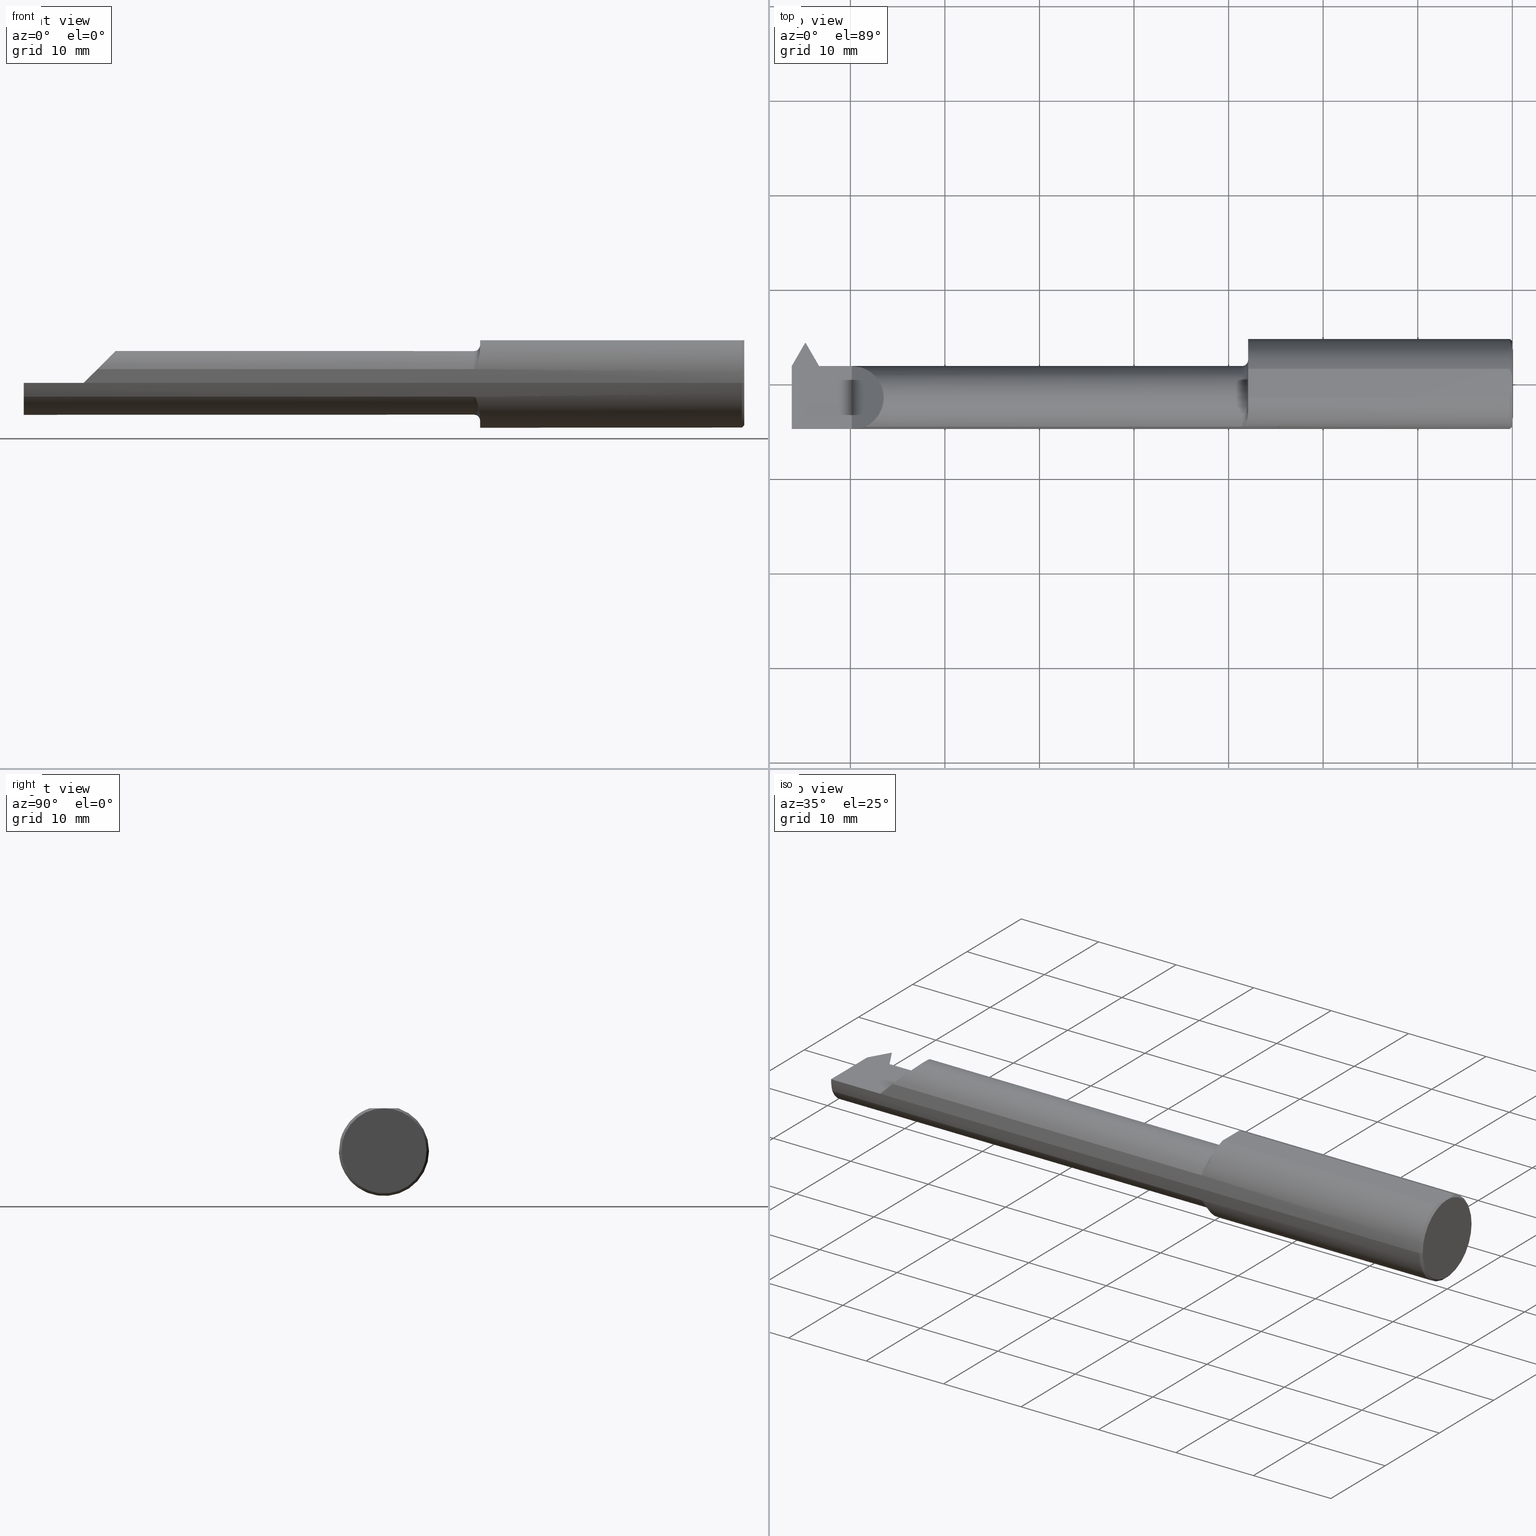
[diagram: canonical four-view strip — front | top / right | iso, engineering-drawing reading convention]
A machine part, canonical four-view strip (front | top / right | iso — engineering-drawing reading convention). The complete STEP part file that produces these views, byte-faithful:
ISO-10303-21;
HEADER;
FILE_DESCRIPTION (( 'STEP AP203' ),
    '1' );
FILE_NAME ('231960-LHTT3601800.STEP',
    '2025-01-28T18:56:17',
    ( '' ),
    ( '' ),
    'SwSTEP 2.0',
    'SolidWorks 2024',
    '' );
FILE_SCHEMA (( 'CONFIG_CONTROL_DESIGN' ));
ENDSEC;

DATA;
#1 = LINE ( 'NONE', #81, #246 ) ;
#2 = ORIENTED_EDGE ( 'NONE', *, *, #98, .F. ) ;
#3 = DIRECTION ( 'NONE',  ( -1.000000000000000000, -9.422009876951564852E-18, 0.000000000000000000 ) ) ;
#4 = VECTOR ( 'NONE', #361, 39.37007874015748143 ) ;
#5 = EDGE_CURVE ( 'NONE', #470, #222, #281, .T. ) ;
#6 = DIRECTION ( 'NONE',  ( -1.000000000000000000, -1.224646799147313518E-16, 0.000000000000000000 ) ) ;
#7 = VERTEX_POINT ( 'NONE', #498 ) ;
#8 = CARTESIAN_POINT ( 'NONE',  ( -1.100000000000000311, 1.714505518806293898E-16, 0.000000000000000000 ) ) ;
#9 = EDGE_CURVE ( 'NONE', #34, #840, #579, .T. ) ;
#10 =( BOUNDED_CURVE ( )  B_SPLINE_CURVE ( 3, ( #798, #262, #200, #266 ),
 .UNSPECIFIED., .F., .T. ) 
 B_SPLINE_CURVE_WITH_KNOTS ( ( 4, 4 ),
 ( 1.570796326794896558, 4.266908708460885435 ),
 .UNSPECIFIED. ) 
 CURVE ( )  GEOMETRIC_REPRESENTATION_ITEM ( )  RATIONAL_B_SPLINE_CURVE ( ( 1.000000000000000000, 0.4806019281062861581, 0.4806019281062861581, 1.000000000000000000 ) ) 
 REPRESENTATION_ITEM ( '' )  );
#11 = CARTESIAN_POINT ( 'NONE',  ( -2.881074374157797546, 0.04759084417664784239, -0.1330000000000000071 ) ) ;
#12 = ORIENTED_EDGE ( 'NONE', *, *, #548, .F. ) ;
#13 = CARTESIAN_POINT ( 'NONE',  ( -1.024723209186555203E-17, 0.1773500000000007848, 2.233143438245201271E-17 ) ) ;
#14 = DIRECTION ( 'NONE',  ( 1.459813011021671533E-17, -0.9396926207859104263, 0.3420201433256632728 ) ) ;
#15 = AXIS2_PLACEMENT_3D ( 'NONE', #536, #360, #635 ) ;
#16 = VERTEX_POINT ( 'NONE', #165 ) ;
#17 = ADVANCED_FACE ( 'NONE', ( #435 ), #301, .T. ) ;
#18 = CARTESIAN_POINT ( 'NONE',  ( -2.941423267150905296, 0.1717766856931814967, 0.003095543500839285055 ) ) ;
#19 = AXIS2_PLACEMENT_3D ( 'NONE', #621, #3, #541 ) ;
#20 = ORIENTED_EDGE ( 'NONE', *, *, #512, .F. ) ;
#21 = DIRECTION ( 'NONE',  ( -0.7745966692414893995, 0.4472135954999489349, -0.4472135954999565399 ) ) ;
#22 = VECTOR ( 'NONE', #107, 39.37007874015748854 ) ;
#23 = CARTESIAN_POINT ( 'NONE',  ( -1.106840882823497019, -0.1605979928433040327, -0.09695168669191628341 ) ) ;
#24 = CARTESIAN_POINT ( 'NONE',  ( -1.125000000000000222, -0.05835000000000015868, 0.000000000000000000 ) ) ;
#25 = PLANE ( 'NONE',  #824 ) ;
#26 = DIRECTION ( 'NONE',  ( 0.000000000000000000, -1.000000000000000000, 0.000000000000000000 ) ) ;
#27 = CC_DESIGN_PERSON_AND_ORGANIZATION_ASSIGNMENT ( #263, #43, ( #364 ) ) ;
#28 = EDGE_LOOP ( 'NONE', ( #773, #779 ) ) ;
#29 = AXIS2_PLACEMENT_3D ( 'NONE', #707, #815, #144 ) ;
#30 = VECTOR ( 'NONE', #345, 39.37007874015748143 ) ;
#31 = CARTESIAN_POINT ( 'NONE',  ( -1.114331470962522497, -0.1730809661842620251, -0.07185561948439719848 ) ) ;
#32 = AXIS2_PLACEMENT_3D ( 'NONE', #422, #767, #774 ) ;
#33 = DIRECTION ( 'NONE',  ( 1.000000000000000000, 9.422009876951564852E-18, 0.000000000000000000 ) ) ;
#34 = VERTEX_POINT ( 'NONE', #297 ) ;
#35 = FACE_OUTER_BOUND ( 'NONE', #802, .T. ) ;
#36 = CARTESIAN_POINT ( 'NONE',  ( 1.147187889101280854E-17, 3.061616997868382155E-16, 0.000000000000000000 ) ) ;
#37 = ORIENTED_EDGE ( 'NONE', *, *, #142, .T. ) ;
#38 = DIRECTION ( 'NONE',  ( 1.000000000000000000, 0.000000000000000000, 0.000000000000000000 ) ) ;
#39 = DIRECTION ( 'NONE',  ( 1.000000000000000000, 1.224646799147352961E-16, -0.000000000000000000 ) ) ;
#40 = ORIENTED_EDGE ( 'NONE', *, *, #641, .F. ) ;
#41 = CARTESIAN_POINT ( 'NONE',  ( -2.881074374157795770, 0.07464999999999984148, 0.000000000000000000 ) ) ;
#42 = EDGE_CURVE ( 'NONE', #152, #112, #835, .T. ) ;
#43 = PERSON_AND_ORGANIZATION_ROLE ( 'design_supplier' ) ;
#44 = AXIS2_PLACEMENT_3D ( 'NONE', #161, #179, #727 ) ;
#45 = CARTESIAN_POINT ( 'NONE',  ( -2.881947536149771061, 0.06447738502881458778, -0.04999999999999973910 ) ) ;
#46 = EDGE_CURVE ( 'NONE', #776, #486, #842, .T. ) ;
#47 = VECTOR ( 'NONE', #692, 39.37007874015748143 ) ;
#48 = ORIENTED_EDGE ( 'NONE', *, *, #832, .F. ) ;
#49 = PLANE ( 'NONE',  #245 ) ;
#50 = CYLINDRICAL_SURFACE ( 'NONE', #525, 0.1873499999999999888 ) ;
#51 = AXIS2_PLACEMENT_3D ( 'NONE', #289, #39, #445 ) ;
#52 = ORIENTED_EDGE ( 'NONE', *, *, #517, .T. ) ;
#53 = CARTESIAN_POINT ( 'NONE',  ( -0.009999999999999620304, -0.06039039658753660861, 0.1773500000000000354 ) ) ;
#54 = DIRECTION ( 'NONE',  ( 0.000000000000000000, 0.000000000000000000, 1.000000000000000000 ) ) ;
#55 = CARTESIAN_POINT ( 'NONE',  ( -1.117163479082055932, -0.1755340703777930333, 0.06552011612893474113 ) ) ;
#56 = EDGE_LOOP ( 'NONE', ( #560, #133, #660 ) ) ;
#57 = DIRECTION ( 'NONE',  ( -1.000000000000000000, -9.422009876951564852E-18, -0.000000000000000000 ) ) ;
#58 = CARTESIAN_POINT ( 'NONE',  ( -1.122655856876659808, -0.1781552959227975519, 0.05797775639605525638 ) ) ;
#59 = VECTOR ( 'NONE', #599, 39.37007874015748854 ) ;
#60 = ORIENTED_EDGE ( 'NONE', *, *, #394, .T. ) ;
#61 = VECTOR ( 'NONE', #737, 39.37007874015748143 ) ;
#62 = PLANE ( 'NONE',  #549 ) ;
#63 = VECTOR ( 'NONE', #567, 39.37007874015748143 ) ;
#64 = DIRECTION ( 'NONE',  ( 0.000000000000000000, 1.000000000000000000, 0.000000000000000000 ) ) ;
#65 = EDGE_LOOP ( 'NONE', ( #619, #555, #367, #546, #679, #20, #580, #652, #747, #611 ) ) ;
#66 = CARTESIAN_POINT ( 'NONE',  ( -0.009999999999999620304, 0.06039039658753714984, 0.1773500000000000354 ) ) ;
#67 = FACE_OUTER_BOUND ( 'NONE', #640, .T. ) ;
#68 = ORIENTED_EDGE ( 'NONE', *, *, #312, .T. ) ;
#69 = EDGE_CURVE ( 'NONE', #684, #486, #659, .T. ) ;
#70 =( BOUNDED_CURVE ( )  B_SPLINE_CURVE ( 3, ( #41, #503, #636, #853 ),
 .UNSPECIFIED., .F., .T. ) 
 B_SPLINE_CURVE_WITH_KNOTS ( ( 4, 4 ),
 ( 1.570796326794896780, 1.972222054753673959 ),
 .UNSPECIFIED. ) 
 CURVE ( )  GEOMETRIC_REPRESENTATION_ITEM ( )  RATIONAL_B_SPLINE_CURVE ( ( 1.000000000000000000, 0.9866164697472142864, 0.9866164697472142864, 1.000000000000000000 ) ) 
 REPRESENTATION_ITEM ( '' )  );
#71 = CARTESIAN_POINT ( 'NONE',  ( -3.000000000000000444, 0.06393532237734401991, -0.02601557670413293805 ) ) ;
#72 = ADVANCED_FACE ( 'NONE', ( #236 ), #569, .F. ) ;
#73 = AXIS2_PLACEMENT_3D ( 'NONE', #253, #588, #522 ) ;
#74 = ORIENTED_EDGE ( 'NONE', *, *, #542, .T. ) ;
#75 = LINE ( 'NONE', #818, #572 ) ;
#76 = CONICAL_SURFACE ( 'NONE', #524, 0.1773500000000004795, 0.7853981633974431720 ) ;
#77 = FACE_OUTER_BOUND ( 'NONE', #480, .T. ) ;
#78 = ORIENTED_EDGE ( 'NONE', *, *, #717, .F. ) ;
#79 = ORIENTED_EDGE ( 'NONE', *, *, #804, .T. ) ;
#80 = DIRECTION ( 'NONE',  ( -1.000000000000000000, -1.224646799147313518E-16, 0.000000000000000000 ) ) ;
#81 = CARTESIAN_POINT ( 'NONE',  ( -2.141041125410059198, -1.236130670101555973, -0.05000000000000740658 ) ) ;
#82 = ADVANCED_FACE ( 'NONE', ( #778 ), #713, .T. ) ;
#83 = ORIENTED_EDGE ( 'NONE', *, *, #102, .F. ) ;
#84 = EDGE_CURVE ( 'NONE', #152, #686, #182, .T. ) ;
#85 = LINE ( 'NONE', #154, #799 ) ;
#86 = CC_DESIGN_APPROVAL ( #594, ( #819 ) ) ;
#87 = CC_DESIGN_APPROVAL ( #407, ( #364 ) ) ;
#88 = EDGE_CURVE ( 'NONE', #665, #711, #322, .T. ) ;
#89 = CARTESIAN_POINT ( 'NONE',  ( -1.100000000000000311, -0.1160303770345110230, 0.1470951192431506904 ) ) ;
#90 = ORIENTED_EDGE ( 'NONE', *, *, #312, .F. ) ;
#91 = DIRECTION ( 'NONE',  ( 0.000000000000000000, 1.000000000000000000, 8.972136187338140072E-17 ) ) ;
#92 = CARTESIAN_POINT ( 'NONE',  ( -1.123749915749442829, -0.1783697086546688904, -0.05730854678360357973 ) ) ;
#93 = ORIENTED_EDGE ( 'NONE', *, *, #641, .T. ) ;
#94 = ORIENTED_EDGE ( 'NONE', *, *, #354, .T. ) ;
#95 = DIRECTION ( 'NONE',  ( 1.224646799147352961E-16, -1.000000000000000000, 0.000000000000000000 ) ) ;
#96 = CARTESIAN_POINT ( 'NONE',  ( -0.0008974174807281616682, -0.02044204845470701595, 0.1773500000000000909 ) ) ;
#97 = EDGE_LOOP ( 'NONE', ( #571, #763, #461, #766, #52, #740, #856, #817 ) ) ;
#98 = EDGE_CURVE ( 'NONE', #577, #787, #233, .T. ) ;
#99 = CARTESIAN_POINT ( 'NONE',  ( -1.120126530293609646, -0.1772957297413638167, -0.06055838166122251565 ) ) ;
#100 = LINE ( 'NONE', #775, #350 ) ;
#101 = ORIENTED_EDGE ( 'NONE', *, *, #735, .T. ) ;
#102 = EDGE_CURVE ( 'NONE', #787, #625, #100, .T. ) ;
#103 = DIRECTION ( 'NONE',  ( -1.000000000000000000, -1.224646799147352961E-16, 0.000000000000000000 ) ) ;
#104 = VECTOR ( 'NONE', #192, 39.37007874015748143 ) ;
#105 = VECTOR ( 'NONE', #653, 39.37007874015748143 ) ;
#106 = DIRECTION ( 'NONE',  ( -0.8486396879976008112, -0.4899623523104145728, 0.1993679344171976064 ) ) ;
#107 = DIRECTION ( 'NONE',  ( 0.1143501000964206038, 0.1980601832175914734, 0.9734969021171832049 ) ) ;
#108 = ORIENTED_EDGE ( 'NONE', *, *, #539, .F. ) ;
#109 = DATE_TIME_ROLE ( 'classification_date' ) ;
#110 = CYLINDRICAL_SURFACE ( 'NONE', #44, 0.1330000000000000904 ) ;
#111 = ADVANCED_FACE ( 'NONE', ( #851 ), #110, .T. ) ;
#112 = VERTEX_POINT ( 'NONE', #563 ) ;
#113 = CARTESIAN_POINT ( 'NONE',  ( -2.881074374157795770, 0.06407714550917452401, -0.05196724008907319808 ) ) ;
#114 = CALENDAR_DATE ( 2025, 28, 1 ) ;
#115 = EDGE_CURVE ( 'NONE', #34, #625, #366, .T. ) ;
#116 = DIRECTION ( 'NONE',  ( -0.7071067811865511255, -0.7071067811865440200, 0.000000000000000000 ) ) ;
#117 = ORIENTED_EDGE ( 'NONE', *, *, #69, .T. ) ;
#118 = DIRECTION ( 'NONE',  ( -9.422009876951564852E-18, 1.000000000000000000, 0.000000000000000000 ) ) ;
#119 = CIRCLE ( 'NONE', #29, 0.1330000000000000349 ) ;
#120 = CARTESIAN_POINT ( 'NONE',  ( -3.000000000000000444, -6.123233995736767268E-17, 0.000000000000000000 ) ) ;
#121 = VECTOR ( 'NONE', #630, 39.37007874015748854 ) ;
#122 = VECTOR ( 'NONE', #239, 39.37007874015748143 ) ;
#123 = ORIENTED_EDGE ( 'NONE', *, *, #721, .F. ) ;
#124 = CARTESIAN_POINT ( 'NONE',  ( -2.942999999999999616, 1.090011308086663799, 0.8871084618176655612 ) ) ;
#125 = COORDINATED_UNIVERSAL_TIME_OFFSET ( 8, 0, .BEHIND. ) ;
#126 = PRODUCT ( '231960-LHTT3601800', '231960-LHTT3601800', '', ( #189 ) ) ;
#127 = FACE_OUTER_BOUND ( 'NONE', #28, .T. ) ;
#128 = EDGE_CURVE ( 'NONE', #728, #769, #587, .T. ) ;
#129 = ORIENTED_EDGE ( 'NONE', *, *, #867, .T. ) ;
#130 = CARTESIAN_POINT ( 'NONE',  ( -2.881947536149771061, 1.001585846846495986, 0.8871084618176655612 ) ) ;
#131 = PERSON_AND_ORGANIZATION ( #823, #349 ) ;
#132 = CARTESIAN_POINT ( 'NONE',  ( -1.120156893127618458, -0.1773094052629653194, 0.06051821018283167625 ) ) ;
#133 = ORIENTED_EDGE ( 'NONE', *, *, #115, .F. ) ;
#134 = CARTESIAN_POINT ( 'NONE',  ( -2.942739408347422092, 0.1524514882866912224, -0.04999999999999882316 ) ) ;
#135 = DIRECTION ( 'NONE',  ( 1.000000000000000000, 1.878145495644149877E-14, 0.000000000000000000 ) ) ;
#136 = VECTOR ( 'NONE', #276, 39.37007874015748143 ) ;
#137 = ORIENTED_EDGE ( 'NONE', *, *, #482, .T. ) ;
#138 = PLANE ( 'NONE',  #510 ) ;
#139 = DIRECTION ( 'NONE',  ( 1.000000000000000000, 1.224646799147352961E-16, -0.000000000000000000 ) ) ;
#140 = ORIENTED_EDGE ( 'NONE', *, *, #394, .F. ) ;
#141 = VECTOR ( 'NONE', #785, 39.37007874015748854 ) ;
#142 = EDGE_CURVE ( 'NONE', #764, #711, #566, .T. ) ;
#143 = DIRECTION ( 'NONE',  ( 0.000000000000000000, -1.000000000000000000, -5.329070518200751394E-15 ) ) ;
#144 = DIRECTION ( 'NONE',  ( 0.000000000000000000, -1.000000000000000000, 0.000000000000000000 ) ) ;
#145 = FACE_OUTER_BOUND ( 'NONE', #335, .T. ) ;
#146 = AXIS2_PLACEMENT_3D ( 'NONE', #148, #272, #143 ) ;
#147 = EDGE_CURVE ( 'NONE', #604, #840, #374, .T. ) ;
#148 = CARTESIAN_POINT ( 'NONE',  ( -1.100000000000000311, 1.714505518806293898E-16, 0.000000000000000000 ) ) ;
#149 = VERTEX_POINT ( 'NONE', #673 ) ;
#150 = EDGE_LOOP ( 'NONE', ( #40, #332, #624, #195, #215, #153, #865, #534, #852 ) ) ;
#151 = CARTESIAN_POINT ( 'NONE',  ( -3.000000000000000444, -0.2500000000000000000, 0.000000000000000000 ) ) ;
#152 = VERTEX_POINT ( 'NONE', #805 ) ;
#153 = ORIENTED_EDGE ( 'NONE', *, *, #84, .F. ) ;
#154 = CARTESIAN_POINT ( 'NONE',  ( 1.674854427290641782E-17, 0.06447738502888293588, -0.04999999999993170324 ) ) ;
#155 = CARTESIAN_POINT ( 'NONE',  ( -2.800000000000000266, 0.1706499999999998296, 8.875653457662611807E-19 ) ) ;
#156 = EDGE_LOOP ( 'NONE', ( #436, #314, #286, #670 ) ) ;
#157 = ADVANCED_BREP_SHAPE_REPRESENTATION ( '231960-LHTT3601800', ( #346, #626 ), #674 ) ;
#158 = AXIS2_PLACEMENT_3D ( 'NONE', #664, #402, #592 ) ;
#159 = PLANE ( 'NONE',  #19 ) ;
#160 = CONICAL_SURFACE ( 'NONE', #32, 0.1773500000000004795, 0.7853981633974431720 ) ;
#161 = CARTESIAN_POINT ( 'NONE',  ( -3.000000000000000444, -0.05835000000000017950, 0.000000000000000000 ) ) ;
#162 = ORIENTED_EDGE ( 'NONE', *, *, #290, .F. ) ;
#163 = EDGE_CURVE ( 'NONE', #711, #604, #537, .T. ) ;
#164 = CARTESIAN_POINT ( 'NONE',  ( -2.891947536149771736, 1.001585846846495986, 0.8871084618176655612 ) ) ;
#165 = CARTESIAN_POINT ( 'NONE',  ( -2.881947536149771061, -0.01852261497118709230, -0.1330000000000002014 ) ) ;
#166 = ADVANCED_FACE ( 'NONE', ( #469 ), #50, .T. ) ;
#167 = ORIENTED_EDGE ( 'NONE', *, *, #287, .F. ) ;
#168 = DIRECTION ( 'NONE',  ( 0.000000000000000000, -1.000000000000000000, -8.972136187338141305E-17 ) ) ;
#169 = CARTESIAN_POINT ( 'NONE',  ( -1.117141984682263667, -0.1755174329696183033, -0.06556455082928989986 ) ) ;
#170 = LOCAL_TIME ( 10, 56, 17.00000000000000000, #667 ) ;
#171 = CARTESIAN_POINT ( 'NONE',  ( -2.770936377457810185, -0.03548799669998278783, -0.5413455488680262162 ) ) ;
#172 = ORIENTED_EDGE ( 'NONE', *, *, #733, .F. ) ;
#173 = FACE_OUTER_BOUND ( 'NONE', #234, .T. ) ;
#174 = AXIS2_PLACEMENT_3D ( 'NONE', #614, #6, #685 ) ;
#175 = DATE_AND_TIME ( #306, #623 ) ;
#176 = AXIS2_PLACEMENT_3D ( 'NONE', #130, #857, #529 ) ;
#177 = CARTESIAN_POINT ( 'NONE',  ( -3.000000000000000444, -6.123233995736767268E-17, 0.000000000000000000 ) ) ;
#178 = EDGE_CURVE ( 'NONE', #319, #222, #205, .T. ) ;
#179 = DIRECTION ( 'NONE',  ( -1.000000000000000000, -9.422009876951564852E-18, -0.000000000000000000 ) ) ;
#180 = ORIENTED_EDGE ( 'NONE', *, *, #181, .T. ) ;
#181 = EDGE_CURVE ( 'NONE', #403, #783, #212, .T. ) ;
#182 = LINE ( 'NONE', #724, #814 ) ;
#183 = ORIENTED_EDGE ( 'NONE', *, *, #609, .F. ) ;
#184 = LINE ( 'NONE', #442, #105 ) ;
#185 = APPROVAL_STATUS ( 'not_yet_approved' ) ;
#186 = CARTESIAN_POINT ( 'NONE',  ( -1.118195961774019809, -0.1762973784583070913, 0.06343092843765897604 ) ) ;
#187 = ORIENTED_EDGE ( 'NONE', *, *, #147, .F. ) ;
#188 = PLANE ( 'NONE',  #176 ) ;
#189 = MECHANICAL_CONTEXT ( 'NONE', #307, 'mechanical' ) ;
#190 = VECTOR ( 'NONE', #260, 39.37007874015748143 ) ;
#191 = CIRCLE ( 'NONE', #259, 0.1773500000000004795 ) ;
#192 = DIRECTION ( 'NONE',  ( -1.000000000000000000, -1.553500558300393113E-17, -0.000000000000000000 ) ) ;
#193 = AXIS2_PLACEMENT_3D ( 'NONE', #489, #698, #759 ) ;
#194 = AXIS2_PLACEMENT_3D ( 'NONE', #356, #21, #550 ) ;
#195 = ORIENTED_EDGE ( 'NONE', *, *, #683, .T. ) ;
#196 = DIRECTION ( 'NONE',  ( 0.4999999999999887867, 0.8660254037844449249, 0.000000000000000000 ) ) ;
#197 = COORDINATED_UNIVERSAL_TIME_OFFSET ( 8, 0, .BEHIND. ) ;
#198 = FACE_OUTER_BOUND ( 'NONE', #694, .T. ) ;
#199 = ORIENTED_EDGE ( 'NONE', *, *, #609, .T. ) ;
#200 = CARTESIAN_POINT ( 'NONE',  ( -2.530319072763994370, -0.1008380660117492583, 0.2196809272360040199 ) ) ;
#201 = DIRECTION ( 'NONE',  ( 0.1993679344171976064, 0.000000000000000000, -0.9799247046208294787 ) ) ;
#202 = ORIENTED_EDGE ( 'NONE', *, *, #88, .F. ) ;
#203 = PLANE ( 'NONE',  #746 ) ;
#204 = ADVANCED_FACE ( 'NONE', ( #873 ), #405, .F. ) ;
#205 = LINE ( 'NONE', #870, #104 ) ;
#206 = ORIENTED_EDGE ( 'NONE', *, *, #651, .T. ) ;
#207 = AXIS2_PLACEMENT_3D ( 'NONE', #681, #532, #399 ) ;
#208 = DIRECTION ( 'NONE',  ( 1.000000000000000000, 9.422009876951564852E-18, 0.000000000000000000 ) ) ;
#209 = ADVANCED_FACE ( 'NONE', ( #198 ), #323, .T. ) ;
#210 = LINE ( 'NONE', #610, #866 ) ;
#211 = VECTOR ( 'NONE', #718, 39.37007874015748143 ) ;
#212 = B_SPLINE_CURVE_WITH_KNOTS ( 'NONE', 3,
 ( #268, #330, #264, #808, #678, #790, #739, #518, #385, #55, #186, #132, #753, #58, #606, #530 ),
 .UNSPECIFIED., .F., .F.,
 ( 4, 2, 2, 2, 2, 2, 2, 4 ),
 ( 0.0004765446698264718729, 0.001211022660611612905, 0.001945500651396753775, 0.002679978642181896163, 0.003047217637574466814, 0.003230837135270751923, 0.003322646884118894695, 0.003414456632967037900 ),
 .UNSPECIFIED. ) ;
#213 = LINE ( 'NONE', #284, #30 ) ;
#214 = CARTESIAN_POINT ( 'NONE',  ( -3.000000000000000444, -0.05835000000000015175, -0.1330000000000000349 ) ) ;
#215 = ORIENTED_EDGE ( 'NONE', *, *, #733, .T. ) ;
#216 = DIRECTION ( 'NONE',  ( 0.000000000000000000, -1.000000000000000000, 0.000000000000000000 ) ) ;
#217 = LINE ( 'NONE', #682, #688 ) ;
#218 = ORIENTED_EDGE ( 'NONE', *, *, #752, .F. ) ;
#219 = LINE ( 'NONE', #617, #414 ) ;
#220 = CARTESIAN_POINT ( 'NONE',  ( -1.125000000000000222, -0.05835000000000014481, 0.000000000000000000 ) ) ;
#221 = CARTESIAN_POINT ( 'NONE',  ( -2.273458874589974865, 1.312582093236026815, -0.04999999999999647782 ) ) ;
#222 = VERTEX_POINT ( 'NONE', #730 ) ;
#223 = CARTESIAN_POINT ( 'NONE',  ( -2.881074374157795770, -0.05835000000000024889, -0.1330000000000000349 ) ) ;
#224 = DIRECTION ( 'NONE',  ( 0.000000000000000000, -0.3420201433256632173, -0.9396926207859103153 ) ) ;
#225 = DIRECTION ( 'NONE',  ( 1.000000000000000000, 1.224646799147352961E-16, -0.000000000000000000 ) ) ;
#226 = CARTESIAN_POINT ( 'NONE',  ( -1.100000000000000311, -0.1160303770351317904, -0.1470951192429073018 ) ) ;
#227 = EDGE_CURVE ( 'NONE', #665, #725, #318, .T. ) ;
#228 = DIRECTION ( 'NONE',  ( 0.000000000000000000, 1.000000000000000000, 0.000000000000000000 ) ) ;
#229 = VERTEX_POINT ( 'NONE', #45 ) ;
#230 = VECTOR ( 'NONE', #232, 39.37007874015748854 ) ;
#231 = ADVANCED_FACE ( 'NONE', ( #127 ), #390, .F. ) ;
#232 = DIRECTION ( 'NONE',  ( -0.02328694095509205655, 0.3419273951315133786, 0.9394377972167885504 ) ) ;
#233 = LINE ( 'NONE', #171, #455 ) ;
#234 = EDGE_LOOP ( 'NONE', ( #827, #806, #172, #353, #375, #348 ) ) ;
#235 = DIRECTION ( 'NONE',  ( -1.000000000000000000, -1.224646799147313518E-16, 0.000000000000000000 ) ) ;
#236 = FACE_OUTER_BOUND ( 'NONE', #56, .T. ) ;
#237 = ORIENTED_EDGE ( 'NONE', *, *, #227, .F. ) ;
#238 = EDGE_CURVE ( 'NONE', #470, #686, #460, .T. ) ;
#239 = DIRECTION ( 'NONE',  ( 1.000000000000000000, 9.422009876951564852E-18, 0.000000000000000000 ) ) ;
#240 = DIRECTION ( 'NONE',  ( -0.1955200734030769771, 0.1955200734030732579, 0.9610118635026896339 ) ) ;
#241 = EDGE_CURVE ( 'NONE', #756, #725, #382, .T. ) ;
#242 = ORIENTED_EDGE ( 'NONE', *, *, #163, .F. ) ;
#243 = CARTESIAN_POINT ( 'NONE',  ( -3.000000000000000444, -0.02882404976244847331, -0.1329999999999998961 ) ) ;
#244 = PERSON_AND_ORGANIZATION ( #823, #349 ) ;
#245 = AXIS2_PLACEMENT_3D ( 'NONE', #124, #732, #256 ) ;
#246 = VECTOR ( 'NONE', #557, 39.37007874015748854 ) ;
#247 = DIRECTION ( 'NONE',  ( -0.000000000000000000, 1.000000000000000000, -0.000000000000000000 ) ) ;
#248 = ORIENTED_EDGE ( 'NONE', *, *, #451, .T. ) ;
#249 = CARTESIAN_POINT ( 'NONE',  ( -2.881947536149771061, 0.07465000000000206193, 1.057458468544446464E-14 ) ) ;
#250 = ORIENTED_EDGE ( 'NONE', *, *, #637, .F. ) ;
#251 = DIRECTION ( 'NONE',  ( 0.000000000000000000, -1.000000000000000000, 0.000000000000000000 ) ) ;
#252 = LOCAL_TIME ( 10, 56, 17.00000000000000000, #197 ) ;
#253 = CARTESIAN_POINT ( 'NONE',  ( -0.009999999999999620304, 3.049370529876909883E-16, 0.000000000000000000 ) ) ;
#254 = EDGE_CURVE ( 'NONE', #229, #523, #855, .T. ) ;
#255 = ORIENTED_EDGE ( 'NONE', *, *, #449, .T. ) ;
#256 = DIRECTION ( 'NONE',  ( -0.5000000000000073275, 0.000000000000000000, -0.8660254037844344888 ) ) ;
#257 = PERSON_AND_ORGANIZATION ( #823, #349 ) ;
#258 = EDGE_CURVE ( 'NONE', #229, #16, #864, .T. ) ;
#259 = AXIS2_PLACEMENT_3D ( 'NONE', #556, #225, #702 ) ;
#260 = DIRECTION ( 'NONE',  ( 0.000000000000000000, -0.7071067811865535679, -0.7071067811865415775 ) ) ;
#261 = ORIENTED_EDGE ( 'NONE', *, *, #258, .F. ) ;
#262 = CARTESIAN_POINT ( 'NONE',  ( -2.570066830337789376, 0.07464999999999992475, 0.1799331696622088750 ) ) ;
#263 = PERSON_AND_ORGANIZATION ( #823, #349 ) ;
#264 = CARTESIAN_POINT ( 'NONE',  ( -1.100459820461651583, -0.1306920593656015483, 0.1345866223284594432 ) ) ;
#265 = ORIENTED_EDGE ( 'NONE', *, *, #612, .F. ) ;
#266 = CARTESIAN_POINT ( 'NONE',  ( -2.692691453216398578, -0.1783697086546696398, 0.05730854678360174786 ) ) ;
#267 = EDGE_CURVE ( 'NONE', #486, #787, #527, .T. ) ;
#268 = CARTESIAN_POINT ( 'NONE',  ( -1.100000000000000311, -0.1160303770345110230, 0.1470951192431506904 ) ) ;
#269 = ORIENTED_EDGE ( 'NONE', *, *, #473, .T. ) ;
#270 = ADVANCED_FACE ( 'NONE', ( #543 ), #347, .F. ) ;
#271 = CARTESIAN_POINT ( 'NONE',  ( -2.282268617577938752, 1.317668400721618838, 0.000000000000000000 ) ) ;
#272 = DIRECTION ( 'NONE',  ( 1.000000000000000000, 9.422009876951564852E-18, 0.000000000000000000 ) ) ;
#273 = AXIS2_PLACEMENT_3D ( 'NONE', #533, #452, #395 ) ;
#274 = ORIENTED_EDGE ( 'NONE', *, *, #287, .T. ) ;
#275 = DIRECTION ( 'NONE',  ( 1.000000000000000000, 9.422009876951564852E-18, 0.000000000000000000 ) ) ;
#276 = DIRECTION ( 'NONE',  ( 1.000000000000000000, 1.224646799147352961E-16, -0.000000000000000000 ) ) ;
#277 = ORIENTED_EDGE ( 'NONE', *, *, #791, .T. ) ;
#278 = PRODUCT_RELATED_PRODUCT_CATEGORY ( 'detail', '', ( #126 ) ) ;
#279 = VERTEX_POINT ( 'NONE', #552 ) ;
#280 = FACE_OUTER_BOUND ( 'NONE', #150, .T. ) ;
#281 = LINE ( 'NONE', #221, #141 ) ;
#282 = CIRCLE ( 'NONE', #146, 0.1873499999999999888 ) ;
#283 = ORIENTED_EDGE ( 'NONE', *, *, #69, .F. ) ;
#284 = CARTESIAN_POINT ( 'NONE',  ( -2.881947536149771061, -0.05835000000000024889, -0.1330000000000000349 ) ) ;
#285 = CARTESIAN_POINT ( 'NONE',  ( -2.871983482051149394, -0.05310137099505431862, -0.1330000000000000349 ) ) ;
#286 = ORIENTED_EDGE ( 'NONE', *, *, #290, .T. ) ;
#287 = EDGE_CURVE ( 'NONE', #711, #756, #668, .T. ) ;
#288 = CARTESIAN_POINT ( 'NONE',  ( -1.125000000000000222, -0.1783697086546693900, -0.05730854678360254584 ) ) ;
#289 = CARTESIAN_POINT ( 'NONE',  ( -3.000000000000000444, -6.123233995736767268E-17, 0.000000000000000000 ) ) ;
#290 = EDGE_CURVE ( 'NONE', #714, #736, #217, .T. ) ;
#291 = DIRECTION ( 'NONE',  ( -1.000000000000000000, -9.422009876951564852E-18, -0.000000000000000000 ) ) ;
#292 = CARTESIAN_POINT ( 'NONE',  ( -2.886074374157796107, 0.07464999999999998026, 0.000000000000000000 ) ) ;
#293 = DIRECTION ( 'NONE',  ( 1.000000000000000000, 1.224646799147352961E-16, -0.000000000000000000 ) ) ;
#294 = ORIENTED_EDGE ( 'NONE', *, *, #326, .T. ) ;
#295 = VECTOR ( 'NONE', #418, 39.37007874015748143 ) ;
#296 = CARTESIAN_POINT ( 'NONE',  ( -1.112851115778102251, -0.1712424833498254195, -0.07614241156970170954 ) ) ;
#297 = CARTESIAN_POINT ( 'NONE',  ( -2.750000000000000888, -0.1873500000000000165, 0.000000000000000000 ) ) ;
#298 = EDGE_LOOP ( 'NONE', ( #48, #600, #450, #699 ) ) ;
#299 = DIRECTION ( 'NONE',  ( 1.224646799147352961E-16, -1.000000000000000000, 0.000000000000000000 ) ) ;
#300 = CARTESIAN_POINT ( 'NONE',  ( -2.132231382422093979, -1.231044362615963061, 0.000000000000000000 ) ) ;
#301 = CYLINDRICAL_SURFACE ( 'NONE', #516, 0.1873499999999999888 ) ;
#302 = VERTEX_POINT ( 'NONE', #214 ) ;
#303 = CARTESIAN_POINT ( 'NONE',  ( -2.905788793746045151, 0.04050362363142036987, -0.1678348018936242636 ) ) ;
#304 = VECTOR ( 'NONE', #327, 39.37007874015748143 ) ;
#305 = VERTEX_POINT ( 'NONE', #337 ) ;
#306 = CALENDAR_DATE ( 2025, 28, 1 ) ;
#307 = APPLICATION_CONTEXT ( 'configuration controlled 3d designs of mechanical parts and assemblies' ) ;
#308 = DIRECTION ( 'NONE',  ( 0.9799247046208295897, 9.232860245606301436E-18, 0.1993679344171976342 ) ) ;
#309 = ORIENTED_EDGE ( 'NONE', *, *, #832, .T. ) ;
#310 = LINE ( 'NONE', #466, #61 ) ;
#311 = APPROVAL_ROLE ( '' ) ;
#312 = EDGE_CURVE ( 'NONE', #279, #403, #282, .T. ) ;
#313 = CARTESIAN_POINT ( 'NONE',  ( 1.147187889101284552E-17, 1.404899976408496659E-33, 0.000000000000000000 ) ) ;
#314 = ORIENTED_EDGE ( 'NONE', *, *, #398, .T. ) ;
#315 = LINE ( 'NONE', #868, #352 ) ;
#316 = ADVANCED_FACE ( 'NONE', ( #830 ), #479, .T. ) ;
#317 = DATE_AND_TIME ( #672, #758 ) ;
#318 = LINE ( 'NONE', #734, #59 ) ;
#319 = VERTEX_POINT ( 'NONE', #419 ) ;
#320 = DIRECTION ( 'NONE',  ( 1.878446647226267823E-18, -0.1993679344171976064, -0.9799247046208294787 ) ) ;
#321 = CARTESIAN_POINT ( 'NONE',  ( 0.000000000000000000, 0.000000000000000000, 0.000000000000000000 ) ) ;
#322 = CIRCLE ( 'NONE', #645, 0.1773500000000004795 ) ;
#323 = PLANE ( 'NONE',  #338 ) ;
#324 = AXIS2_PLACEMENT_3D ( 'NONE', #155, #14, #224 ) ;
#325 = EDGE_LOOP ( 'NONE', ( #78, #826, #675, #410 ) ) ;
#326 = EDGE_CURVE ( 'NONE', #756, #149, #210, .T. ) ;
#327 = DIRECTION ( 'NONE',  ( 1.165357228182990658E-14, 0.7071067811865434649, 0.7071067811865515695 ) ) ;
#328 = CC_DESIGN_DATE_AND_TIME_ASSIGNMENT ( #869, #738, ( #564 ) ) ;
#329 = DIMENSIONAL_EXPONENTS ( 1.000000000000000000, 0.000000000000000000, 0.000000000000000000, 0.000000000000000000, 0.000000000000000000, 0.000000000000000000, 0.000000000000000000 ) ;
#330 = CARTESIAN_POINT ( 'NONE',  ( -1.099999999999979883, -0.1236042208122625358, 0.1411207813207334127 ) ) ;
#331 = EDGE_CURVE ( 'NONE', #279, #764, #689, .T. ) ;
#332 = ORIENTED_EDGE ( 'NONE', *, *, #381, .T. ) ;
#333 = CARTESIAN_POINT ( 'NONE',  ( -1.402035612499372659E-15, 0.07465000000005403424, 0.000000000000000000 ) ) ;
#334 = LINE ( 'NONE', #11, #47 ) ;
#335 = EDGE_LOOP ( 'NONE', ( #485, #589, #123, #547 ) ) ;
#336 = FACE_OUTER_BOUND ( 'NONE', #754, .T. ) ;
#337 = CARTESIAN_POINT ( 'NONE',  ( -2.881074374157795770, 0.04759084417664784239, -0.1330000000000000071 ) ) ;
#338 = AXIS2_PLACEMENT_3D ( 'NONE', #313, #796, #457 ) ;
#339 = CC_DESIGN_PERSON_AND_ORGANIZATION_ASSIGNMENT ( #131, #726, ( #364 ) ) ;
#340 = ORIENTED_EDGE ( 'NONE', *, *, #115, .T. ) ;
#341 = EDGE_LOOP ( 'NONE', ( #94, #309, #60, #137 ) ) ;
#342 = CARTESIAN_POINT ( 'NONE',  ( -2.730507368514860200, -0.1873500000000000165, 0.01949263148514045890 ) ) ;
#343 = DIRECTION ( 'NONE',  ( -0.5000000000000008882, 0.8660254037844380415, 8.991635853121682805E-17 ) ) ;
#344 = ORIENTED_EDGE ( 'NONE', *, *, #227, .T. ) ;
#345 = DIRECTION ( 'NONE',  ( 0.000000000000000000, -1.000000000000000000, -8.972136187338142537E-17 ) ) ;
#346 = MANIFOLD_SOLID_BREP ( 'Cut-Sweep1', #558 ) ;
#347 = PLANE ( 'NONE',  #570 ) ;
#348 = ORIENTED_EDGE ( 'NONE', *, *, #473, .F. ) ;
#349 = ORGANIZATION ( 'UNSPECIFIED', 'UNSPECIFIED', '' ) ;
#350 = VECTOR ( 'NONE', #656, 39.37007874015748143 ) ;
#351 = UNCERTAINTY_MEASURE_WITH_UNIT (LENGTH_MEASURE( 1.000000000000000082E-05 ), #438, 'distance_accuracy_value', 'NONE');
#352 = VECTOR ( 'NONE', #671, 39.37007874015748143 ) ;
#353 = ORIENTED_EDGE ( 'NONE', *, *, #568, .F. ) ;
#354 = EDGE_CURVE ( 'NONE', #387, #112, #474, .T. ) ;
#355 = CARTESIAN_POINT ( 'NONE',  ( -2.881074374157795770, -0.05835000000000017950, 0.000000000000000000 ) ) ;
#356 = CARTESIAN_POINT ( 'NONE',  ( -3.000000000000000444, 0.9912844120552340987, 0.8871084618176655612 ) ) ;
#357 = CARTESIAN_POINT ( 'NONE',  ( -3.000000000000000444, 0.05417595023755289452, -0.04999999999999975991 ) ) ;
#358 = ADVANCED_FACE ( 'NONE', ( #67 ), #755, .F. ) ;
#359 = AXIS2_PLACEMENT_3D ( 'NONE', #362, #378, #584 ) ;
#360 = DIRECTION ( 'NONE',  ( 0.000000000000000000, 0.7071067811865415775, -0.7071067811865534569 ) ) ;
#361 = DIRECTION ( 'NONE',  ( 0.000000000000000000, -0.7071067811865535679, -0.7071067811865415775 ) ) ;
#362 = CARTESIAN_POINT ( 'NONE',  ( -2.750000000000000888, -0.2500000000000000000, 0.000000000000000000 ) ) ;
#363 = ORIENTED_EDGE ( 'NONE', *, *, #258, .T. ) ;
#364 = PRODUCT_DEFINITION_FORMATION_WITH_SPECIFIED_SOURCE ( 'ANY', '', #126, .NOT_KNOWN. ) ;
#365 = CARTESIAN_POINT ( 'NONE',  ( -1.118162645443746328, -0.1762760481395242718, -0.06349063590883620434 ) ) ;
#366 = LINE ( 'NONE', #644, #467 ) ;
#367 = ORIENTED_EDGE ( 'NONE', *, *, #821, .T. ) ;
#368 = AXIS2_PLACEMENT_3D ( 'NONE', #24, #291, #251 ) ;
#369 =( NAMED_UNIT ( * ) SI_UNIT ( $, .STERADIAN. ) SOLID_ANGLE_UNIT ( ) );
#370 = LINE ( 'NONE', #638, #230 ) ;
#371 = DIRECTION ( 'NONE',  ( 1.000000000000000000, 1.224646799147352961E-16, -0.000000000000000000 ) ) ;
#372 = ORIENTED_EDGE ( 'NONE', *, *, #425, .F. ) ;
#373 = APPROVAL_DATE_TIME ( #663, #594 ) ;
#374 = LINE ( 'NONE', #448, #551 ) ;
#375 = ORIENTED_EDGE ( 'NONE', *, *, #386, .F. ) ;
#376 = CARTESIAN_POINT ( 'NONE',  ( -2.891947536149771736, 0.06447738502881480982, -0.04999999999999926725 ) ) ;
#377 = PERSON_AND_ORGANIZATION ( #823, #349 ) ;
#378 = DIRECTION ( 'NONE',  ( 0.7071067811865426878, 0.000000000000000000, -0.7071067811865523467 ) ) ;
#379 = EDGE_LOOP ( 'NONE', ( #108, #822, #101, #499, #68, #180, #871 ) ) ;
#380 = LINE ( 'NONE', #134, #304 ) ;
#381 = EDGE_CURVE ( 'NONE', #523, #305, #334, .T. ) ;
#382 = CIRCLE ( 'NONE', #73, 0.1873499999999999888 ) ;
#383 = PERSON_AND_ORGANIZATION_ROLE ( 'creator' ) ;
#384 = VECTOR ( 'NONE', #643, 39.37007874015748143 ) ;
#385 = CARTESIAN_POINT ( 'NONE',  ( -1.114343418362527594, -0.1730952584121042415, 0.07182162584505727421 ) ) ;
#386 = EDGE_CURVE ( 'NONE', #700, #490, #632, .T. ) ;
#387 = VERTEX_POINT ( 'NONE', #618 ) ;
#388 = CARTESIAN_POINT ( 'NONE',  ( -2.881074374157795770, 0.07464999999999984148, 0.000000000000000000 ) ) ;
#389 = PERSON_AND_ORGANIZATION ( #823, #349 ) ;
#390 = PLANE ( 'NONE',  #836 ) ;
#391 = EDGE_LOOP ( 'NONE', ( #202, #344, #810, #167 ) ) ;
#392 = FACE_OUTER_BOUND ( 'NONE', #341, .T. ) ;
#393 = PERSON_AND_ORGANIZATION_ROLE ( 'classification_officer' ) ;
#394 = EDGE_CURVE ( 'NONE', #319, #684, #1, .T. ) ;
#395 = DIRECTION ( 'NONE',  ( 0.000000000000000000, 1.000000000000000000, 1.608104540654732770E-16 ) ) ;
#396 = ORIENTED_EDGE ( 'NONE', *, *, #651, .F. ) ;
#397 = AXIS2_PLACEMENT_3D ( 'NONE', #875, #57, #862 ) ;
#398 = EDGE_CURVE ( 'NONE', #470, #714, #622, .T. ) ;
#399 = DIRECTION ( 'NONE',  ( -1.253099476677462608E-16, 1.000000000000000000, 0.000000000000000000 ) ) ;
#400 = ADVANCED_FACE ( 'NONE', ( #145 ), #415, .F. ) ;
#401 = VECTOR ( 'NONE', #669, 39.37007874015748143 ) ;
#402 = DIRECTION ( 'NONE',  ( 1.000000000000000000, 1.224646799147352961E-16, -0.000000000000000000 ) ) ;
#403 = VERTEX_POINT ( 'NONE', #89 ) ;
#404 = CARTESIAN_POINT ( 'NONE',  ( -1.100000000000000311, 0.1873500000000001275, 0.000000000000000000 ) ) ;
#405 = PLANE ( 'NONE',  #273 ) ;
#406 = ORIENTED_EDGE ( 'NONE', *, *, #147, .T. ) ;
#407 = APPROVAL ( #185, 'UNSPECIFIED' ) ;
#408 = CARTESIAN_POINT ( 'NONE',  ( -3.000000000000000444, -0.06039039658753697637, 0.1773500000000000354 ) ) ;
#409 =( BOUNDED_CURVE ( )  B_SPLINE_CURVE ( 3, ( #708, #342, #757, #544 ),
 .UNSPECIFIED., .F., .T. ) 
 B_SPLINE_CURVE_WITH_KNOTS ( ( 4, 4 ),
 ( 4.712388980384689674, 5.023262387692862596 ),
 .UNSPECIFIED. ) 
 CURVE ( )  GEOMETRIC_REPRESENTATION_ITEM ( )  RATIONAL_B_SPLINE_CURVE ( ( 1.000000000000000000, 0.9919626788073504509, 0.9919626788073504509, 1.000000000000000000 ) ) 
 REPRESENTATION_ITEM ( '' )  );
#410 = ORIENTED_EDGE ( 'NONE', *, *, #241, .T. ) ;
#411 = ADVANCED_FACE ( 'NONE', ( #77 ), #160, .T. ) ;
#412 = LINE ( 'NONE', #687, #295 ) ;
#413 = DIRECTION ( 'NONE',  ( -1.000000000000000000, 0.000000000000000000, -0.000000000000000000 ) ) ;
#414 = VECTOR ( 'NONE', #691, 39.37007874015748143 ) ;
#415 = TOROIDAL_SURFACE ( 'NONE', #705, 0.1580000000000001681, 0.02500000000000000486 ) ;
#416 = ADVANCED_FACE ( 'NONE', ( #575 ), #649, .F. ) ;
#417 = EDGE_LOOP ( 'NONE', ( #453, #90, #248, #12, #607 ) ) ;
#418 = DIRECTION ( 'NONE',  ( 1.000000000000000000, 1.224646799147352961E-16, -0.000000000000000000 ) ) ;
#419 = CARTESIAN_POINT ( 'NONE',  ( -2.942739408347422980, 0.1524514882866905841, -0.04999999999999987094 ) ) ;
#420 = DESIGN_CONTEXT ( 'detailed design', #846, 'design' ) ;
#421 = CARTESIAN_POINT ( 'NONE',  ( -2.881074374157795770, -0.05835000000000024889, -0.1330000000000000349 ) ) ;
#422 = CARTESIAN_POINT ( 'NONE',  ( 0.000000000000000000, 3.061616997868382155E-16, 0.000000000000000000 ) ) ;
#423 = APPROVAL ( #521, 'UNSPECIFIED' ) ;
#424 = CARTESIAN_POINT ( 'NONE',  ( -2.750000000000000888, 0.07464999999999991087, 0.000000000000000000 ) ) ;
#425 = EDGE_CURVE ( 'NONE', #725, #840, #647, .T. ) ;
#426 = LINE ( 'NONE', #177, #719 ) ;
#427 = ORIENTED_EDGE ( 'NONE', *, *, #267, .T. ) ;
#428 = DIRECTION ( 'NONE',  ( 1.224646799147313518E-16, -1.000000000000000000, 0.000000000000000000 ) ) ;
#429 = LINE ( 'NONE', #421, #615 ) ;
#430 = CARTESIAN_POINT ( 'NONE',  ( -2.132231382422093979, -1.231044362615963061, 0.000000000000000000 ) ) ;
#431 = ORIENTED_EDGE ( 'NONE', *, *, #487, .T. ) ;
#432 = DIRECTION ( 'NONE',  ( -1.000000000000000000, -9.422009876951564852E-18, -0.000000000000000000 ) ) ;
#433 = CARTESIAN_POINT ( 'NONE',  ( -2.003037187078897663, -0.1783697086546693344, -0.05730854678360253196 ) ) ;
#434 = CC_DESIGN_PERSON_AND_ORGANIZATION_ASSIGNMENT ( #526, #850, ( #126 ) ) ;
#435 = FACE_OUTER_BOUND ( 'NONE', #325, .T. ) ;
#436 = ORIENTED_EDGE ( 'NONE', *, *, #5, .F. ) ;
#437 = PLANE ( 'NONE',  #751 ) ;
#438 =( CONVERSION_BASED_UNIT ( 'INCH', #496 ) LENGTH_UNIT ( ) NAMED_UNIT ( #329 ) );
#439 = CARTESIAN_POINT ( 'NONE',  ( -1.108867519642199317, -0.1652587220708477411, -0.08874743406640421550 ) ) ;
#440 = CARTESIAN_POINT ( 'NONE',  ( -3.000000000000000444, -0.1873500000000000443, 2.294375778202566330E-17 ) ) ;
#441 = EDGE_LOOP ( 'NONE', ( #93, #261, #657 ) ) ;
#442 = CARTESIAN_POINT ( 'NONE',  ( -3.000000000000000444, 0.1873499999999999055, 0.000000000000000000 ) ) ;
#443 = COORDINATED_UNIVERSAL_TIME_OFFSET ( 8, 0, .BEHIND. ) ;
#444 = CARTESIAN_POINT ( 'NONE',  ( -1.100000000000000089, -0.1312984737625746412, -0.1350514632126310621 ) ) ;
#445 = DIRECTION ( 'NONE',  ( 0.000000000000000000, 1.000000000000000000, 0.000000000000000000 ) ) ;
#446 = ORIENTED_EDGE ( 'NONE', *, *, #482, .F. ) ;
#447 = APPROVAL_ROLE ( '' ) ;
#448 = CARTESIAN_POINT ( 'NONE',  ( 2.171911098287766261E-17, -0.1773500000000001464, 0.000000000000000000 ) ) ;
#449 = EDGE_CURVE ( 'NONE', #222, #736, #370, .T. ) ;
#450 = ORIENTED_EDGE ( 'NONE', *, *, #487, .F. ) ;
#451 = EDGE_CURVE ( 'NONE', #279, #149, #634, .T. ) ;
#452 = DIRECTION ( 'NONE',  ( -2.498191301712524670E-33, 1.608104540654732770E-16, -1.000000000000000000 ) ) ;
#453 = ORIENTED_EDGE ( 'NONE', *, *, #795, .F. ) ;
#454 = LINE ( 'NONE', #608, #631 ) ;
#455 = VECTOR ( 'NONE', #240, 39.37007874015748854 ) ;
#456 = APPROVAL_ROLE ( '' ) ;
#457 = DIRECTION ( 'NONE',  ( -1.224646799147352961E-16, 1.000000000000000000, 0.000000000000000000 ) ) ;
#458 = ORIENTED_EDGE ( 'NONE', *, *, #84, .T. ) ;
#459 = DIRECTION ( 'NONE',  ( 1.840441170054035089E-14, -0.9799247046208295897, 0.1993679344171976342 ) ) ;
#460 = LINE ( 'NONE', #463, #629 ) ;
#461 = ORIENTED_EDGE ( 'NONE', *, *, #386, .T. ) ;
#462 = CARTESIAN_POINT ( 'NONE',  ( -2.941500000000000448, 0.1706500000000001072, 0.000000000000000000 ) ) ;
#463 = CARTESIAN_POINT ( 'NONE',  ( -3.000000000000000444, 0.9912844120552340987, 0.8871084618176655612 ) ) ;
#464 = EDGE_LOOP ( 'NONE', ( #731, #874, #37, #274, #294 ) ) ;
#465 = APPROVAL_PERSON_ORGANIZATION ( #800, #423, #311 ) ;
#466 = CARTESIAN_POINT ( 'NONE',  ( -3.000000000000000444, -0.05835000000000024889, -0.1330000000000000349 ) ) ;
#467 = VECTOR ( 'NONE', #247, 39.37007874015748143 ) ;
#468 = CIRCLE ( 'NONE', #397, 0.1580000000000001958 ) ;
#469 = FACE_OUTER_BOUND ( 'NONE', #97, .T. ) ;
#470 = VERTEX_POINT ( 'NONE', #357 ) ;
#471 = VECTOR ( 'NONE', #293, 39.37007874015748143 ) ;
#472 = DIRECTION ( 'NONE',  ( -1.000000000000000000, -1.224646799147352961E-16, 0.000000000000000000 ) ) ;
#473 = EDGE_CURVE ( 'NONE', #714, #700, #426, .T. ) ;
#474 = LINE ( 'NONE', #285, #750 ) ;
#475 = ADVANCED_FACE ( 'NONE', ( #35 ), #25, .F. ) ;
#476 = VERTEX_POINT ( 'NONE', #578 ) ;
#477 = DIRECTION ( 'NONE',  ( -1.000000000000000000, -9.422009876951564852E-18, -0.000000000000000000 ) ) ;
#478 = CARTESIAN_POINT ( 'NONE',  ( -4.018563988022489946E-33, 2.586779880155948158E-16, 0.1773500000000000909 ) ) ;
#479 = CONICAL_SURFACE ( 'NONE', #174, 0.1773500000000004795, 0.7853981633974431720 ) ;
#480 = EDGE_LOOP ( 'NONE', ( #187, #242, #720, #514 ) ) ;
#481 = DIRECTION ( 'NONE',  ( -0.02328694095508794526, -0.3419273951315133786, -0.9394377972167885504 ) ) ;
#482 = EDGE_CURVE ( 'NONE', #684, #387, #845, .T. ) ;
#483 = DIRECTION ( 'NONE',  ( -1.000000000000000000, -9.422009876951564852E-18, -0.000000000000000000 ) ) ;
#484 = CC_DESIGN_PERSON_AND_ORGANIZATION_ASSIGNMENT ( #377, #383, ( #564 ) ) ;
#485 = ORIENTED_EDGE ( 'NONE', *, *, #795, .T. ) ;
#486 = VERTEX_POINT ( 'NONE', #292 ) ;
#487 = EDGE_CURVE ( 'NONE', #222, #152, #771, .T. ) ;
#488 = DIRECTION ( 'NONE',  ( 1.393821857617696278E-33, -8.972136187338141305E-17, 1.000000000000000000 ) ) ;
#489 = CARTESIAN_POINT ( 'NONE',  ( -3.000000000000000444, -6.123233995736767268E-17, 0.000000000000000000 ) ) ;
#490 = VERTEX_POINT ( 'NONE', #723 ) ;
#491 = FACE_OUTER_BOUND ( 'NONE', #391, .T. ) ;
#492 = CARTESIAN_POINT ( 'NONE',  ( -2.881947536149771061, 0.04759084417664782851, -0.1330000000000000071 ) ) ;
#493 = CIRCLE ( 'NONE', #839, 0.1873499999999999888 ) ;
#494 = DIRECTION ( 'NONE',  ( -1.224646799147352961E-16, 1.000000000000000000, 0.000000000000000000 ) ) ;
#495 = CARTESIAN_POINT ( 'NONE',  ( -3.000000000000000444, -0.1873500000000000443, 0.000000000000000000 ) ) ;
#496 = LENGTH_MEASURE_WITH_UNIT ( LENGTH_MEASURE( 0.02539999999999999897 ), #628 );
#497 = LINE ( 'NONE', #433, #122 ) ;
#498 = CARTESIAN_POINT ( 'NONE',  ( -1.125000000000000222, -0.1783697086546693900, -0.05730854678360254584 ) ) ;
#499 = ORIENTED_EDGE ( 'NONE', *, *, #331, .F. ) ;
#500 = CARTESIAN_POINT ( 'NONE',  ( -1.122632702519553938, -0.1781504652642083297, -0.05799271583144500336 ) ) ;
#501 = CARTESIAN_POINT ( 'NONE',  ( -2.881074374157795770, 0.06945148828669099605, -0.1330000000000000071 ) ) ;
#502 = ORIENTED_EDGE ( 'NONE', *, *, #238, .F. ) ;
#503 = CARTESIAN_POINT ( 'NONE',  ( -2.877429102214748902, 0.07464999999999995250, -0.01791708402103223824 ) ) ;
#504 = APPROVAL_PERSON_ORGANIZATION ( #389, #594, #456 ) ;
#505 = CC_DESIGN_APPROVAL ( #423, ( #564 ) ) ;
#506 = CARTESIAN_POINT ( 'NONE',  ( -2.800000000000000266, 0.1524514882866900289, -0.05000000000000000278 ) ) ;
#507 = CARTESIAN_POINT ( 'NONE',  ( 5.173904006555303358E-16, -0.01026980879711908781, 0.1773500000000000909 ) ) ;
#508 = EDGE_LOOP ( 'NONE', ( #277, #446, #199, #363 ) ) ;
#509 = AXIS2_PLACEMENT_3D ( 'NONE', #709, #33, #26 ) ;
#510 = AXIS2_PLACEMENT_3D ( 'NONE', #333, #459, #794 ) ;
#511 = APPROVAL_DATE_TIME ( #863, #407 ) ;
#512 = EDGE_CURVE ( 'NONE', #490, #7, #497, .T. ) ;
#513 = CARTESIAN_POINT ( 'NONE',  ( -0.006863038267948253987, -0.05065855487579219718, 0.1773500000000001187 ) ) ;
#514 = ORIENTED_EDGE ( 'NONE', *, *, #735, .F. ) ;
#515 = CARTESIAN_POINT ( 'NONE',  ( -4.018563988022489946E-33, 2.586779880155948158E-16, 0.1773500000000000909 ) ) ;
#516 = AXIS2_PLACEMENT_3D ( 'NONE', #576, #838, #228 ) ;
#517 = EDGE_CURVE ( 'NONE', #7, #728, #742, .T. ) ;
#518 = CARTESIAN_POINT ( 'NONE',  ( -1.112861924135736924, -0.1712588160411470106, 0.07610809679501476244 ) ) ;
#519 = ORIENTED_EDGE ( 'NONE', *, *, #88, .T. ) ;
#520 = FACE_OUTER_BOUND ( 'NONE', #848, .T. ) ;
#521 = APPROVAL_STATUS ( 'not_yet_approved' ) ;
#522 = DIRECTION ( 'NONE',  ( -1.253099476677462608E-16, 1.000000000000000000, -8.881784197001252323E-16 ) ) ;
#523 = VERTEX_POINT ( 'NONE', #492 ) ;
#524 = AXIS2_PLACEMENT_3D ( 'NONE', #696, #80, #428 ) ;
#525 = AXIS2_PLACEMENT_3D ( 'NONE', #120, #139, #64 ) ;
#526 = PERSON_AND_ORGANIZATION ( #823, #349 ) ;
#527 = LINE ( 'NONE', #745, #761 ) ;
#528 = ORIENTED_EDGE ( 'NONE', *, *, #178, .T. ) ;
#529 = DIRECTION ( 'NONE',  ( -0.000000000000000000, 0.000000000000000000, 1.000000000000000000 ) ) ;
#530 = CARTESIAN_POINT ( 'NONE',  ( -1.125000000000000222, -0.1783697086546693900, 0.05730854678360254584 ) ) ;
#531 = ORIENTED_EDGE ( 'NONE', *, *, #5, .T. ) ;
#532 = DIRECTION ( 'NONE',  ( -1.000000000000000000, -1.224646799147313518E-16, 0.000000000000000000 ) ) ;
#533 = CARTESIAN_POINT ( 'NONE',  ( -3.000000000000000444, 0.2123500000000002053, 0.1773500000000001187 ) ) ;
#534 = ORIENTED_EDGE ( 'NONE', *, *, #354, .F. ) ;
#535 = FACE_OUTER_BOUND ( 'NONE', #586, .T. ) ;
#536 = CARTESIAN_POINT ( 'NONE',  ( -2.891947536149771736, 1.001585846846495986, 0.8871084618176655612 ) ) ;
#537 = CIRCLE ( 'NONE', #158, 0.1773500000000004795 ) ;
#538 = AXIS2_PLACEMENT_3D ( 'NONE', #223, #488, #168 ) ;
#539 = EDGE_CURVE ( 'NONE', #34, #476, #409, .T. ) ;
#540 = CARTESIAN_POINT ( 'NONE',  ( -0.0009167640511159435429, 0.02059964124962118323, 0.1773500000000001187 ) ) ;
#541 = DIRECTION ( 'NONE',  ( 9.422009876951564852E-18, -1.000000000000000000, 0.000000000000000000 ) ) ;
#542 = EDGE_CURVE ( 'NONE', #792, #305, #429, .T. ) ;
#543 = FACE_OUTER_BOUND ( 'NONE', #593, .T. ) ;
#544 = CARTESIAN_POINT ( 'NONE',  ( -2.692691453216398578, -0.1783697086546696398, 0.05730854678360174786 ) ) ;
#545 = CARTESIAN_POINT ( 'NONE',  ( -0.004345633232307873246, 0.04072602595449489882, 0.1773500000000001187 ) ) ;
#546 = ORIENTED_EDGE ( 'NONE', *, *, #574, .F. ) ;
#547 = ORIENTED_EDGE ( 'NONE', *, *, #181, .F. ) ;
#548 = EDGE_CURVE ( 'NONE', #769, #149, #493, .T. ) ;
#549 = AXIS2_PLACEMENT_3D ( 'NONE', #271, #749, #196 ) ;
#550 = DIRECTION ( 'NONE',  ( -0.4999999999999958367, 0.000000000000000000, 0.8660254037844409281 ) ) ;
#551 = VECTOR ( 'NONE', #116, 39.37007874015748143 ) ;
#552 = CARTESIAN_POINT ( 'NONE',  ( -1.100000000000000311, -0.06039039658753674045, 0.1773500000000000354 ) ) ;
#553 = CIRCLE ( 'NONE', #207, 0.1873499999999999888 ) ;
#554 = ADVANCED_FACE ( 'NONE', ( #491 ), #76, .T. ) ;
#555 = ORIENTED_EDGE ( 'NONE', *, *, #102, .T. ) ;
#556 = CARTESIAN_POINT ( 'NONE',  ( 1.147187889101280854E-17, 3.061616997868382155E-16, 0.000000000000000000 ) ) ;
#557 = DIRECTION ( 'NONE',  ( 0.4999999999999988343, -0.8660254037844391517, -4.702547661072254738E-15 ) ) ;
#558 = CLOSED_SHELL ( 'NONE', ( #554, #316, #82, #166, #706, #680, #416, #475, #748, #829, #17, #270, #72, #204, #209, #411, #655, #400, #111, #854, #358, #231, #581, #744, #858, #768 ) ) ;
#559 = ORIENTED_EDGE ( 'NONE', *, *, #254, .F. ) ;
#560 = ORIENTED_EDGE ( 'NONE', *, *, #821, .F. ) ;
#561 = CARTESIAN_POINT ( 'NONE',  ( 3.319098987389116449E-17, -0.1773500000000001464, 0.000000000000000000 ) ) ;
#562 = CARTESIAN_POINT ( 'NONE',  ( -2.943260591652577141, 0.1524514882866888632, -0.05000000000000118239 ) ) ;
#563 = CARTESIAN_POINT ( 'NONE',  ( -2.942739408347423868, 0.06945148828669099605, -0.1329999999999999793 ) ) ;
#564 = PRODUCT_DEFINITION ( 'UNKNOWN', '', #364, #420 ) ;
#565 = ORIENTED_EDGE ( 'NONE', *, *, #752, .T. ) ;
#566 = B_SPLINE_CURVE_WITH_KNOTS ( 'NONE', 3,
 ( #772, #513, #847, #96, #507, #781 ),
 .UNSPECIFIED., .F., .F.,
 ( 4, 2, 4 ),
 ( 0.001950265285394799661, 0.002725445821525794825, 0.003500626357656789773 ),
 .UNSPECIFIED. ) ;
#567 = DIRECTION ( 'NONE',  ( 1.160966326936290292E-14, -0.7071067811865434649, -0.7071067811865515695 ) ) ;
#568 = EDGE_CURVE ( 'NONE', #490, #302, #119, .T. ) ;
#569 = PLANE ( 'NONE',  #359 ) ;
#570 = AXIS2_PLACEMENT_3D ( 'NONE', #151, #813, #413 ) ;
#571 = ORIENTED_EDGE ( 'NONE', *, *, #9, .F. ) ;
#572 = VECTOR ( 'NONE', #477, 39.37007874015748143 ) ;
#573 = LINE ( 'NONE', #844, #812 ) ;
#574 = EDGE_CURVE ( 'NONE', #783, #476, #75, .T. ) ;
#575 = FACE_OUTER_BOUND ( 'NONE', #298, .T. ) ;
#576 = CARTESIAN_POINT ( 'NONE',  ( -3.000000000000000444, -6.123233995736767268E-17, 0.000000000000000000 ) ) ;
#577 = VERTEX_POINT ( 'NONE', #760 ) ;
#578 = CARTESIAN_POINT ( 'NONE',  ( -2.692691453216398578, -0.1783697086546696398, 0.05730854678360174786 ) ) ;
#579 = LINE ( 'NONE', #440, #471 ) ;
#580 = ORIENTED_EDGE ( 'NONE', *, *, #568, .T. ) ;
#581 = ADVANCED_FACE ( 'NONE', ( #336 ), #613, .T. ) ;
#582 = AXIS2_PLACEMENT_3D ( 'NONE', #355, #432, #697 ) ;
#583 = CC_DESIGN_DATE_AND_TIME_ASSIGNMENT ( #175, #109, ( #819 ) ) ;
#584 = DIRECTION ( 'NONE',  ( -0.7071067811865523467, 0.000000000000000000, -0.7071067811865426878 ) ) ;
#585 = EDGE_CURVE ( 'NONE', #700, #34, #412, .T. ) ;
#586 = EDGE_LOOP ( 'NONE', ( #218, #129, #74 ) ) ;
#587 = CIRCLE ( 'NONE', #509, 0.1873499999999999888 ) ;
#588 = DIRECTION ( 'NONE',  ( -1.000000000000000000, -1.224646799147313518E-16, 0.000000000000000000 ) ) ;
#589 = ORIENTED_EDGE ( 'NONE', *, *, #517, .F. ) ;
#590 = CARTESIAN_POINT ( 'NONE',  ( -3.000000000000002220, 0.06407714550917019414, -0.05196724008908354397 ) ) ;
#591 = CALENDAR_DATE ( 2025, 28, 1 ) ;
#592 = DIRECTION ( 'NONE',  ( -1.224646799147352961E-16, 1.000000000000000000, 0.000000000000000000 ) ) ;
#593 = EDGE_LOOP ( 'NONE', ( #265, #162, #269, #693, #340, #83, #648, #633 ) ) ;
#594 = APPROVAL ( #784, 'UNSPECIFIED' ) ;
#595 = CARTESIAN_POINT ( 'NONE',  ( -1.100000000000000311, -0.1160303770351317904, -0.1470951192429073018 ) ) ;
#596 = APPLICATION_PROTOCOL_DEFINITION ( 'international standard', 'config_control_design', 1994, #846 ) ;
#597 = APPROVAL_PERSON_ORGANIZATION ( #244, #407, #447 ) ;
#598 = PRODUCT_DEFINITION_SHAPE ( 'NONE', 'NONE',  #564 ) ;
#599 = DIRECTION ( 'NONE',  ( -0.7071067811865512365, 0.7071067811865436870, 8.659560562354888485E-17 ) ) ;
#600 = ORIENTED_EDGE ( 'NONE', *, *, #42, .F. ) ;
#601 = FACE_OUTER_BOUND ( 'NONE', #156, .T. ) ;
#602 = APPROVAL_DATE_TIME ( #317, #423 ) ;
#603 = CARTESIAN_POINT ( 'NONE',  ( -2.881947536149771061, 1.001585846846495986, 0.8871084618176655612 ) ) ;
#604 = VERTEX_POINT ( 'NONE', #561 ) ;
#605 = CARTESIAN_POINT ( 'NONE',  ( -2.881074374157795770, -0.05835000000000015175, -0.1330000000000000349 ) ) ;
#606 = CARTESIAN_POINT ( 'NONE',  ( -1.123764212023045994, -0.1783697086546794375, 0.05730854678357134857 ) ) ;
#607 = ORIENTED_EDGE ( 'NONE', *, *, #128, .F. ) ;
#608 = CARTESIAN_POINT ( 'NONE',  ( -2.881074374157795770, 0.07464999999999991087, -1.440410083513921324E-17 ) ) ;
#609 = EDGE_CURVE ( 'NONE', #684, #229, #85, .T. ) ;
#610 = CARTESIAN_POINT ( 'NONE',  ( -3.000000000000000444, 0.06039039658753678902, 0.1773500000000000354 ) ) ;
#611 = ORIENTED_EDGE ( 'NONE', *, *, #804, .F. ) ;
#612 = EDGE_CURVE ( 'NONE', #736, #776, #219, .T. ) ;
#613 = PLANE ( 'NONE',  #194 ) ;
#614 = CARTESIAN_POINT ( 'NONE',  ( 0.000000000000000000, 3.061616997868382155E-16, 0.000000000000000000 ) ) ;
#615 = VECTOR ( 'NONE', #91, 39.37007874015748143 ) ;
#616 = EDGE_LOOP ( 'NONE', ( #237, #396, #406, #372 ) ) ;
#617 = CARTESIAN_POINT ( 'NONE',  ( -3.000000000000000444, 0.1706499999999999406, 0.000000000000000000 ) ) ;
#618 = CARTESIAN_POINT ( 'NONE',  ( -2.891947536149771292, -0.01852261497118728312, -0.1330000000000001736 ) ) ;
#619 = ORIENTED_EDGE ( 'NONE', *, *, #710, .F. ) ;
#620 = CC_DESIGN_PERSON_AND_ORGANIZATION_ASSIGNMENT ( #257, #393, ( #819 ) ) ;
#621 = CARTESIAN_POINT ( 'NONE',  ( -1.100000000000000311, 0.1873500000000002941, 0.000000000000000000 ) ) ;
#622 = LINE ( 'NONE', #71, #121 ) ;
#623 = LOCAL_TIME ( 10, 56, 17.00000000000000000, #125 ) ;
#624 = ORIENTED_EDGE ( 'NONE', *, *, #542, .F. ) ;
#625 = VERTEX_POINT ( 'NONE', #424 ) ;
#626 = AXIS2_PLACEMENT_3D ( 'NONE', #321, #54, #38 ) ;
#627 = DIRECTION ( 'NONE',  ( 1.000000000000000000, 2.357856904596307634E-14, 2.357856904596268191E-14 ) ) ;
#628 =( LENGTH_UNIT ( ) NAMED_UNIT ( * ) SI_UNIT ( $, .METRE. ) );
#629 = VECTOR ( 'NONE', #801, 39.37007874015748143 ) ;
#630 = DIRECTION ( 'NONE',  ( -6.842104469694088491E-17, 0.3768974211598653534, 0.9262550048032361927 ) ) ;
#631 = VECTOR ( 'NONE', #320, 39.37007874015748143 ) ;
#632 = CIRCLE ( 'NONE', #193, 0.1873499999999999888 ) ;
#633 = ORIENTED_EDGE ( 'NONE', *, *, #46, .F. ) ;
#634 = LINE ( 'NONE', #780, #384 ) ;
#635 = DIRECTION ( 'NONE',  ( 0.000000000000000000, 0.7071067811865534569, 0.7071067811865415775 ) ) ;
#636 = CARTESIAN_POINT ( 'NONE',  ( -2.873857010182696570, 0.07107790796794666299, -0.03547447728800868366 ) ) ;
#637 = EDGE_CURVE ( 'NONE', #776, #319, #833, .T. ) ;
#638 = CARTESIAN_POINT ( 'NONE',  ( -2.944421640306047472, 0.1694994269776338991, -0.003161173398384122327 ) ) ;
#639 = DIRECTION ( 'NONE',  ( -0.4999999999999894529, -0.8660254037844445918, -8.991635853121724713E-17 ) ) ;
#640 = EDGE_LOOP ( 'NONE', ( #528, #255, #797, #831 ) ) ;
#641 = EDGE_CURVE ( 'NONE', #523, #16, #213, .T. ) ;
#642 =( NAMED_UNIT ( * ) PLANE_ANGLE_UNIT ( ) SI_UNIT ( $, .RADIAN. ) );
#643 = DIRECTION ( 'NONE',  ( -9.422009876951564852E-18, 1.000000000000000000, 1.608104540654732770E-16 ) ) ;
#644 = CARTESIAN_POINT ( 'NONE',  ( -2.750000000000000888, -0.2500000000000000000, 0.000000000000000000 ) ) ;
#645 = AXIS2_PLACEMENT_3D ( 'NONE', #36, #371, #494 ) ;
#646 = CIRCLE ( 'NONE', #368, 0.1330000000000001736 ) ;
#647 = CIRCLE ( 'NONE', #662, 0.1873499999999999888 ) ;
#648 = ORIENTED_EDGE ( 'NONE', *, *, #267, .F. ) ;
#649 = PLANE ( 'NONE',  #677 ) ;
#650 = DIRECTION ( 'NONE',  ( 1.000000000000000000, 1.553500558300393113E-17, 0.000000000000000000 ) ) ;
#651 = EDGE_CURVE ( 'NONE', #604, #665, #191, .T. ) ;
#652 = ORIENTED_EDGE ( 'NONE', *, *, #683, .F. ) ;
#653 = DIRECTION ( 'NONE',  ( 1.000000000000000000, 1.224646799147352961E-16, -0.000000000000000000 ) ) ;
#654 = SHAPE_DEFINITION_REPRESENTATION ( #598, #157 ) ;
#655 = ADVANCED_FACE ( 'NONE', ( #770 ), #159, .T. ) ;
#656 = DIRECTION ( 'NONE',  ( 1.000000000000000000, 9.422009876951564852E-18, 0.000000000000000000 ) ) ;
#657 = ORIENTED_EDGE ( 'NONE', *, *, #254, .T. ) ;
#658 = CALENDAR_DATE ( 2025, 28, 1 ) ;
#659 = LINE ( 'NONE', #303, #22 ) ;
#660 = ORIENTED_EDGE ( 'NONE', *, *, #539, .T. ) ;
#661 = FACE_OUTER_BOUND ( 'NONE', #508, .T. ) ;
#662 = AXIS2_PLACEMENT_3D ( 'NONE', #834, #235, #777 ) ;
#663 = DATE_AND_TIME ( #114, #170 ) ;
#664 = CARTESIAN_POINT ( 'NONE',  ( 1.147187889101280854E-17, 3.061616997868382155E-16, 0.000000000000000000 ) ) ;
#665 = VERTEX_POINT ( 'NONE', #13 ) ;
#666 = CARTESIAN_POINT ( 'NONE',  ( -1.125000000000000222, -0.1783697086546693900, 0.05730854678360254584 ) ) ;
#667 = COORDINATED_UNIVERSAL_TIME_OFFSET ( 8, 0, .BEHIND. ) ;
#668 = B_SPLINE_CURVE_WITH_KNOTS ( 'NONE', 3,
 ( #478, #816, #540, #545, #762, #825 ),
 .UNSPECIFIED., .F., .F.,
 ( 4, 2, 4 ),
 ( 0.003500626357656789773, 0.004276870921897977552, 0.005053115486139164898 ),
 .UNSPECIFIED. ) ;
#669 = DIRECTION ( 'NONE',  ( 0.000000000000000000, -0.1993679344171975787, -0.9799247046208294787 ) ) ;
#670 = ORIENTED_EDGE ( 'NONE', *, *, #449, .F. ) ;
#671 = DIRECTION ( 'NONE',  ( -1.000000000000000000, 1.393821857617719541E-33, 1.393821857617696449E-33 ) ) ;
#672 = CALENDAR_DATE ( 2025, 28, 1 ) ;
#673 = CARTESIAN_POINT ( 'NONE',  ( -1.100000000000000311, 0.06039039658753714290, 0.1773500000000000909 ) ) ;
#674 =( GEOMETRIC_REPRESENTATION_CONTEXT ( 3 ) GLOBAL_UNCERTAINTY_ASSIGNED_CONTEXT ( ( #351 ) ) GLOBAL_UNIT_ASSIGNED_CONTEXT ( ( #438, #642, #369 ) ) REPRESENTATION_CONTEXT ( 'NONE', 'WORKASPACE' ) );
#675 = ORIENTED_EDGE ( 'NONE', *, *, #326, .F. ) ;
#676 = DIRECTION ( 'NONE',  ( -1.000000000000000000, -9.422009876951564852E-18, -0.000000000000000000 ) ) ;
#677 = AXIS2_PLACEMENT_3D ( 'NONE', #506, #841, #837 ) ;
#678 = CARTESIAN_POINT ( 'NONE',  ( -1.103482061302841988, -0.1498697720273085010, 0.1128244190106193617 ) ) ;
#679 = ORIENTED_EDGE ( 'NONE', *, *, #721, .T. ) ;
#680 = ADVANCED_FACE ( 'NONE', ( #280 ), #828, .F. ) ;
#681 = CARTESIAN_POINT ( 'NONE',  ( -0.009999999999999620304, 3.049370529876909883E-16, 0.000000000000000000 ) ) ;
#682 = CARTESIAN_POINT ( 'NONE',  ( -2.282268617577938752, 1.317668400721618838, 0.000000000000000000 ) ) ;
#683 = EDGE_CURVE ( 'NONE', #792, #302, #573, .T. ) ;
#684 = VERTEX_POINT ( 'NONE', #376 ) ;
#685 = DIRECTION ( 'NONE',  ( 1.224646799147313518E-16, -1.000000000000000000, 0.000000000000000000 ) ) ;
#686 = VERTEX_POINT ( 'NONE', #243 ) ;
#687 = CARTESIAN_POINT ( 'NONE',  ( -3.000000000000000444, -0.1873500000000000443, 0.000000000000000000 ) ) ;
#688 = VECTOR ( 'NONE', #820, 39.37007874015748854 ) ;
#689 = LINE ( 'NONE', #408, #136 ) ;
#690 = VERTEX_POINT ( 'NONE', #113 ) ;
#691 = DIRECTION ( 'NONE',  ( 1.000000000000000000, 9.422009876951564852E-18, 0.000000000000000000 ) ) ;
#692 = DIRECTION ( 'NONE',  ( 1.000000000000000000, 1.878145495644149877E-14, 1.616780750868055111E-30 ) ) ;
#693 = ORIENTED_EDGE ( 'NONE', *, *, #585, .T. ) ;
#694 = EDGE_LOOP ( 'NONE', ( #704, #206, #519 ) ) ;
#695 = PLANE ( 'NONE',  #15 ) ;
#696 = CARTESIAN_POINT ( 'NONE',  ( 0.000000000000000000, 3.061616997868382155E-16, 0.000000000000000000 ) ) ;
#697 = DIRECTION ( 'NONE',  ( 0.000000000000000000, -1.000000000000000000, 0.000000000000000000 ) ) ;
#698 = DIRECTION ( 'NONE',  ( 1.000000000000000000, 1.224646799147352961E-16, -0.000000000000000000 ) ) ;
#699 = ORIENTED_EDGE ( 'NONE', *, *, #178, .F. ) ;
#700 = VERTEX_POINT ( 'NONE', #495 ) ;
#701 = CIRCLE ( 'NONE', #582, 0.1330000000000000349 ) ;
#702 = DIRECTION ( 'NONE',  ( -1.224646799147352961E-16, 1.000000000000000000, 0.000000000000000000 ) ) ;
#703 = DIRECTION ( 'NONE',  ( 0.4999999999999998335, -0.8660254037844388186, 0.000000000000000000 ) ) ;
#704 = ORIENTED_EDGE ( 'NONE', *, *, #163, .T. ) ;
#705 = AXIS2_PLACEMENT_3D ( 'NONE', #220, #483, #765 ) ;
#706 = ADVANCED_FACE ( 'NONE', ( #173 ), #437, .T. ) ;
#707 = CARTESIAN_POINT ( 'NONE',  ( -3.000000000000000444, -0.05835000000000017950, 0.000000000000000000 ) ) ;
#708 = CARTESIAN_POINT ( 'NONE',  ( -2.750000000000000888, -0.1873500000000000165, 0.000000000000000000 ) ) ;
#709 = CARTESIAN_POINT ( 'NONE',  ( -1.100000000000000311, 1.714505518806293898E-16, 0.000000000000000000 ) ) ;
#710 = EDGE_CURVE ( 'NONE', #787, #577, #70, .T. ) ;
#711 = VERTEX_POINT ( 'NONE', #515 ) ;
#712 = CARTESIAN_POINT ( 'NONE',  ( -1.120855552425395807, -0.1776175334603396494, -0.05960499283470929721 ) ) ;
#713 = CYLINDRICAL_SURFACE ( 'NONE', #51, 0.1873499999999999888 ) ;
#714 = VERTEX_POINT ( 'NONE', #788 ) ;
#715 = CARTESIAN_POINT ( 'NONE',  ( -3.000000000000000444, -6.123233995736767268E-17, 0.000000000000000000 ) ) ;
#716 = CARTESIAN_POINT ( 'NONE',  ( -1.101810233260114957, -0.1445504080075232234, -0.1207082908324051962 ) ) ;
#717 = EDGE_CURVE ( 'NONE', #769, #725, #184, .T. ) ;
#718 = DIRECTION ( 'NONE',  ( 0.4999999999999998335, -0.8660254037844388186, 0.000000000000000000 ) ) ;
#719 = VECTOR ( 'NONE', #95, 39.37007874015748143 ) ;
#720 = ORIENTED_EDGE ( 'NONE', *, *, #142, .F. ) ;
#721 = EDGE_CURVE ( 'NONE', #783, #7, #646, .T. ) ;
#722 = COORDINATED_UNIVERSAL_TIME_OFFSET ( 8, 0, .BEHIND. ) ;
#723 = CARTESIAN_POINT ( 'NONE',  ( -3.000000000000000444, -0.1783697086546697508, -0.05730854678360152582 ) ) ;
#724 = CARTESIAN_POINT ( 'NONE',  ( -2.983053705027747693, 0.0005277941295427587311, -0.1330000000000000349 ) ) ;
#725 = VERTEX_POINT ( 'NONE', #729 ) ;
#726 = PERSON_AND_ORGANIZATION_ROLE ( 'creator' ) ;
#727 = DIRECTION ( 'NONE',  ( 0.000000000000000000, -1.000000000000000000, 0.000000000000000000 ) ) ;
#728 = VERTEX_POINT ( 'NONE', #595 ) ;
#729 = CARTESIAN_POINT ( 'NONE',  ( -0.009999999999999642855, 0.1873500000000002941, 0.000000000000000000 ) ) ;
#730 = CARTESIAN_POINT ( 'NONE',  ( -2.943260591652577141, 0.1524514882866898347, -0.04999999999999959338 ) ) ;
#731 = ORIENTED_EDGE ( 'NONE', *, *, #451, .F. ) ;
#732 = DIRECTION ( 'NONE',  ( 0.7745966692414799626, 0.4472135954999570950, -0.4472135954999646446 ) ) ;
#733 = EDGE_CURVE ( 'NONE', #302, #686, #310, .T. ) ;
#734 = CARTESIAN_POINT ( 'NONE',  ( -2.171911098287766261E-17, 0.1773500000000007848, 2.171911098287836519E-17 ) ) ;
#735 = EDGE_CURVE ( 'NONE', #840, #764, #553, .T. ) ;
#736 = VERTEX_POINT ( 'NONE', #872 ) ;
#737 = DIRECTION ( 'NONE',  ( 0.000000000000000000, 1.000000000000000000, 8.972136187338140072E-17 ) ) ;
#738 = DATE_TIME_ROLE ( 'creation_date' ) ;
#739 = CARTESIAN_POINT ( 'NONE',  ( -1.108844572613943313, -0.1652240583778507299, 0.08882027308811819843 ) ) ;
#740 = ORIENTED_EDGE ( 'NONE', *, *, #128, .T. ) ;
#741 = FACE_OUTER_BOUND ( 'NONE', #441, .T. ) ;
#742 = B_SPLINE_CURVE_WITH_KNOTS ( 'NONE', 3,
 ( #288, #92, #500, #712, #99, #365, #169, #31, #296, #439, #23, #716, #444, #226 ),
 .UNSPECIFIED., .F., .F.,
 ( 4, 2, 2, 2, 2, 2, 4 ),
 ( 1.965724206509027427E-07, 9.384097494423951260E-05, 0.0001874853774678281377, 0.0003747741825150061198, 0.0007493517926093669086, 0.001498507012798088595, 0.002996817453175532400 ),
 .UNSPECIFIED. ) ;
#743 = LOCAL_TIME ( 10, 56, 17.00000000000000000, #722 ) ;
#744 = ADVANCED_FACE ( 'NONE', ( #741 ), #188, .T. ) ;
#745 = CARTESIAN_POINT ( 'NONE',  ( -1.402035612499372659E-15, 0.07465000000005403424, 0.000000000000000000 ) ) ;
#746 = AXIS2_PLACEMENT_3D ( 'NONE', #811, #208, #118 ) ;
#747 = ORIENTED_EDGE ( 'NONE', *, *, #867, .F. ) ;
#748 = ADVANCED_FACE ( 'NONE', ( #520 ), #138, .F. ) ;
#749 = DIRECTION ( 'NONE',  ( 0.8486396879976070284, -0.4899623523104038592, 0.1993679344171975787 ) ) ;
#750 = VECTOR ( 'NONE', #343, 39.37007874015748143 ) ;
#751 = AXIS2_PLACEMENT_3D ( 'NONE', #715, #103, #299 ) ;
#752 = EDGE_CURVE ( 'NONE', #690, #305, #454, .T. ) ;
#753 = CARTESIAN_POINT ( 'NONE',  ( -1.120882408083194948, -0.1776276410483745849, 0.05957475000073168131 ) ) ;
#754 = EDGE_LOOP ( 'NONE', ( #458, #502, #531, #431 ) ) ;
#755 = PLANE ( 'NONE',  #324 ) ;
#756 = VERTEX_POINT ( 'NONE', #66 ) ;
#757 = CARTESIAN_POINT ( 'NONE',  ( -2.711249739839923567, -0.1843323154515828510, 0.03875026016007689783 ) ) ;
#758 = LOCAL_TIME ( 10, 56, 17.00000000000000000, #443 ) ;
#759 = DIRECTION ( 'NONE',  ( 0.000000000000000000, 1.000000000000000000, 0.000000000000000000 ) ) ;
#760 = CARTESIAN_POINT ( 'NONE',  ( -2.870501519666967649, 0.06407714550917134599, -0.05196724008908376602 ) ) ;
#761 = VECTOR ( 'NONE', #135, 39.37007874015748143 ) ;
#762 = CARTESIAN_POINT ( 'NONE',  ( -0.006852151730285845586, 0.05062478141268319382, 0.1773500000000000909 ) ) ;
#763 = ORIENTED_EDGE ( 'NONE', *, *, #585, .F. ) ;
#764 = VERTEX_POINT ( 'NONE', #53 ) ;
#765 = DIRECTION ( 'NONE',  ( 9.422009876951564852E-18, -1.000000000000000000, 0.000000000000000000 ) ) ;
#766 = ORIENTED_EDGE ( 'NONE', *, *, #512, .T. ) ;
#767 = DIRECTION ( 'NONE',  ( -1.000000000000000000, -1.224646799147313518E-16, 0.000000000000000000 ) ) ;
#768 = ADVANCED_FACE ( 'NONE', ( #392 ), #49, .T. ) ;
#769 = VERTEX_POINT ( 'NONE', #404 ) ;
#770 = FACE_OUTER_BOUND ( 'NONE', #417, .T. ) ;
#771 = LINE ( 'NONE', #562, #63 ) ;
#772 = CARTESIAN_POINT ( 'NONE',  ( -0.009999999999999620304, -0.06039039658753660861, 0.1773500000000000354 ) ) ;
#773 = ORIENTED_EDGE ( 'NONE', *, *, #710, .T. ) ;
#774 = DIRECTION ( 'NONE',  ( 1.224646799147313518E-16, -1.000000000000000000, 0.000000000000000000 ) ) ;
#775 = CARTESIAN_POINT ( 'NONE',  ( -3.000000000000000444, 0.07464999999999991087, 0.000000000000000000 ) ) ;
#776 = VERTEX_POINT ( 'NONE', #462 ) ;
#777 = DIRECTION ( 'NONE',  ( -1.253099476677462608E-16, 1.000000000000000000, 0.000000000000000000 ) ) ;
#778 = FACE_OUTER_BOUND ( 'NONE', #379, .T. ) ;
#779 = ORIENTED_EDGE ( 'NONE', *, *, #98, .T. ) ;
#780 = CARTESIAN_POINT ( 'NONE',  ( -1.100000000000000311, 0.2123500000000002330, 0.1773500000000001187 ) ) ;
#781 = CARTESIAN_POINT ( 'NONE',  ( -4.018563988022489946E-33, 2.586779880155948158E-16, 0.1773500000000000909 ) ) ;
#782 = VECTOR ( 'NONE', #481, 39.37007874015748854 ) ;
#783 = VERTEX_POINT ( 'NONE', #666 ) ;
#784 = APPROVAL_STATUS ( 'not_yet_approved' ) ;
#785 = DIRECTION ( 'NONE',  ( 0.4999999999999882871, 0.8660254037844452579, 2.562263399121560119E-15 ) ) ;
#786 = VECTOR ( 'NONE', #650, 39.37007874015748143 ) ;
#787 = VERTEX_POINT ( 'NONE', #388 ) ;
#788 = CARTESIAN_POINT ( 'NONE',  ( -3.000000000000000444, 0.07452118017992298560, 0.000000000000000000 ) ) ;
#789 = APPLICATION_PROTOCOL_DEFINITION ( 'international standard', 'config_control_design', 1994, #307 ) ;
#790 = CARTESIAN_POINT ( 'NONE',  ( -1.106810654710998820, -0.1605151270935969432, 0.09708342838367223226 ) ) ;
#791 = EDGE_CURVE ( 'NONE', #16, #387, #315, .T. ) ;
#792 = VERTEX_POINT ( 'NONE', #605 ) ;
#793 = CC_DESIGN_SECURITY_CLASSIFICATION ( #819, ( #364 ) ) ;
#794 = DIRECTION ( 'NONE',  ( 0.000000000000000000, -0.1993679344171976064, -0.9799247046208294787 ) ) ;
#795 = EDGE_CURVE ( 'NONE', #403, #728, #468, .T. ) ;
#796 = DIRECTION ( 'NONE',  ( 1.000000000000000000, 1.224646799147352961E-16, -0.000000000000000000 ) ) ;
#797 = ORIENTED_EDGE ( 'NONE', *, *, #612, .T. ) ;
#798 = CARTESIAN_POINT ( 'NONE',  ( -2.750000000000000888, 0.07464999999999991087, 0.000000000000000000 ) ) ;
#799 = VECTOR ( 'NONE', #627, 39.37007874015748143 ) ;
#800 = PERSON_AND_ORGANIZATION ( #823, #349 ) ;
#801 = DIRECTION ( 'NONE',  ( 0.000000000000000000, -0.7071067811865535679, -0.7071067811865415775 ) ) ;
#802 = EDGE_LOOP ( 'NONE', ( #140, #250, #843, #283 ) ) ;
#803 = LINE ( 'NONE', #590, #809 ) ;
#804 = EDGE_CURVE ( 'NONE', #577, #690, #803, .T. ) ;
#805 = CARTESIAN_POINT ( 'NONE',  ( -2.943260591652576252, 0.06945148828669099605, -0.1329999999999999793 ) ) ;
#806 = ORIENTED_EDGE ( 'NONE', *, *, #238, .T. ) ;
#807 = CARTESIAN_POINT ( 'NONE',  ( -0.009999999999999596018, -0.1873499999999996835, 2.294375778202566330E-17 ) ) ;
#808 = CARTESIAN_POINT ( 'NONE',  ( -1.102207105173745427, -0.1438831799117078480, 0.1203810775392062660 ) ) ;
#809 = VECTOR ( 'NONE', #676, 39.37007874015748143 ) ;
#810 = ORIENTED_EDGE ( 'NONE', *, *, #241, .F. ) ;
#811 = CARTESIAN_POINT ( 'NONE',  ( -2.881074374157795770, 0.07464999999999984148, 0.000000000000000000 ) ) ;
#812 = VECTOR ( 'NONE', #849, 39.37007874015748143 ) ;
#813 = DIRECTION ( 'NONE',  ( 0.000000000000000000, 0.000000000000000000, -1.000000000000000000 ) ) ;
#814 = VECTOR ( 'NONE', #639, 39.37007874015748854 ) ;
#815 = DIRECTION ( 'NONE',  ( 1.000000000000000000, 1.553500558300393113E-17, -0.000000000000000000 ) ) ;
#816 = CARTESIAN_POINT ( 'NONE',  ( 5.243156175340007021E-16, 0.01028390533945653697, 0.1773500000000001187 ) ) ;
#817 = ORIENTED_EDGE ( 'NONE', *, *, #425, .T. ) ;
#818 = CARTESIAN_POINT ( 'NONE',  ( -2.003037187078897663, -0.1783697086546693344, 0.05730854678360253196 ) ) ;
#819 = SECURITY_CLASSIFICATION ( '', '', #859 ) ;
#820 = DIRECTION ( 'NONE',  ( 0.4999999999999887867, 0.8660254037844449249, 0.000000000000000000 ) ) ;
#821 = EDGE_CURVE ( 'NONE', #625, #476, #10, .T. ) ;
#822 = ORIENTED_EDGE ( 'NONE', *, *, #9, .T. ) ;
#823 = PERSON ( 'UNSPECIFIED', 'UNSPECIFIED', 'UNSPECIFIED', ('UNSPECIFIED'), ('UNSPECIFIED'), ('UNSPECIFIED') ) ;
#824 = AXIS2_PLACEMENT_3D ( 'NONE', #300, #106, #703 ) ;
#825 = CARTESIAN_POINT ( 'NONE',  ( -0.009999999999999620304, 0.06039039658753714984, 0.1773500000000000354 ) ) ;
#826 = ORIENTED_EDGE ( 'NONE', *, *, #548, .T. ) ;
#827 = ORIENTED_EDGE ( 'NONE', *, *, #398, .F. ) ;
#828 = PLANE ( 'NONE',  #538 ) ;
#829 = ADVANCED_FACE ( 'NONE', ( #601 ), #62, .F. ) ;
#830 = FACE_OUTER_BOUND ( 'NONE', #616, .T. ) ;
#831 = ORIENTED_EDGE ( 'NONE', *, *, #637, .T. ) ;
#832 = EDGE_CURVE ( 'NONE', #112, #319, #380, .T. ) ;
#833 = LINE ( 'NONE', #18, #782 ) ;
#834 = CARTESIAN_POINT ( 'NONE',  ( -0.009999999999999620304, 3.049370529876909883E-16, 0.000000000000000000 ) ) ;
#835 = LINE ( 'NONE', #501, #786 ) ;
#836 = AXIS2_PLACEMENT_3D ( 'NONE', #860, #308, #201 ) ;
#837 = DIRECTION ( 'NONE',  ( 0.000000000000000000, -0.7071067811865434649, -0.7071067811865515695 ) ) ;
#838 = DIRECTION ( 'NONE',  ( 1.000000000000000000, 1.224646799147352961E-16, -0.000000000000000000 ) ) ;
#839 = AXIS2_PLACEMENT_3D ( 'NONE', #8, #275, #216 ) ;
#840 = VERTEX_POINT ( 'NONE', #807 ) ;
#841 = DIRECTION ( 'NONE',  ( 1.098490779351301717E-17, -0.7071067811865515695, 0.7071067811865434649 ) ) ;
#842 = LINE ( 'NONE', #430, #211 ) ;
#843 = ORIENTED_EDGE ( 'NONE', *, *, #46, .T. ) ;
#844 = CARTESIAN_POINT ( 'NONE',  ( -2.881074374157795770, -0.05835000000000015175, -0.1330000000000000349 ) ) ;
#845 = LINE ( 'NONE', #164, #4 ) ;
#846 = APPLICATION_CONTEXT ( 'configuration controlled 3d designs of mechanical parts and assemblies' ) ;
#847 = CARTESIAN_POINT ( 'NONE',  ( -0.004318418993203173434, -0.04060972747957806994, 0.1773500000000000909 ) ) ;
#848 = EDGE_LOOP ( 'NONE', ( #559, #183, #117, #427, #2, #79, #565, #861 ) ) ;
#849 = DIRECTION ( 'NONE',  ( -1.000000000000000000, -1.553500558300393421E-17, -0.000000000000000000 ) ) ;
#850 = PERSON_AND_ORGANIZATION_ROLE ( 'design_owner' ) ;
#851 = FACE_OUTER_BOUND ( 'NONE', #65, .T. ) ;
#852 = ORIENTED_EDGE ( 'NONE', *, *, #791, .F. ) ;
#853 = CARTESIAN_POINT ( 'NONE',  ( -2.870501519666967649, 0.06407714550917134599, -0.05196724008908376602 ) ) ;
#854 = ADVANCED_FACE ( 'NONE', ( #535 ), #203, .T. ) ;
#855 = LINE ( 'NONE', #249, #401 ) ;
#856 = ORIENTED_EDGE ( 'NONE', *, *, #717, .T. ) ;
#857 = DIRECTION ( 'NONE',  ( -1.000000000000000000, 0.000000000000000000, -0.000000000000000000 ) ) ;
#858 = ADVANCED_FACE ( 'NONE', ( #661 ), #695, .T. ) ;
#859 = SECURITY_CLASSIFICATION_LEVEL ( 'unclassified' ) ;
#860 = CARTESIAN_POINT ( 'NONE',  ( -2.881074374157795770, -2.714551120954679872E-17, 0.000000000000000000 ) ) ;
#861 = ORIENTED_EDGE ( 'NONE', *, *, #381, .F. ) ;
#862 = DIRECTION ( 'NONE',  ( 0.000000000000000000, -1.000000000000000000, 0.000000000000000000 ) ) ;
#863 = DATE_AND_TIME ( #658, #743 ) ;
#864 = LINE ( 'NONE', #603, #190 ) ;
#865 = ORIENTED_EDGE ( 'NONE', *, *, #42, .T. ) ;
#866 = VECTOR ( 'NONE', #472, 39.37007874015748143 ) ;
#867 = EDGE_CURVE ( 'NONE', #690, #792, #701, .T. ) ;
#868 = CARTESIAN_POINT ( 'NONE',  ( -2.881074374157795770, -0.01852261497118683556, -0.1330000000000000349 ) ) ;
#869 = DATE_AND_TIME ( #591, #252 ) ;
#870 = CARTESIAN_POINT ( 'NONE',  ( -2.800000000000000266, 0.1524514882866900289, -0.05000000000000000278 ) ) ;
#871 = ORIENTED_EDGE ( 'NONE', *, *, #574, .T. ) ;
#872 = CARTESIAN_POINT ( 'NONE',  ( -2.944499999999999229, 0.1706500000000000239, 0.000000000000000000 ) ) ;
#873 = FACE_OUTER_BOUND ( 'NONE', #464, .T. ) ;
#874 = ORIENTED_EDGE ( 'NONE', *, *, #331, .T. ) ;
#875 = CARTESIAN_POINT ( 'NONE',  ( -1.100000000000000311, -0.05835000000000015868, 0.000000000000000000 ) ) ;
ENDSEC;
END-ISO-10303-21;
